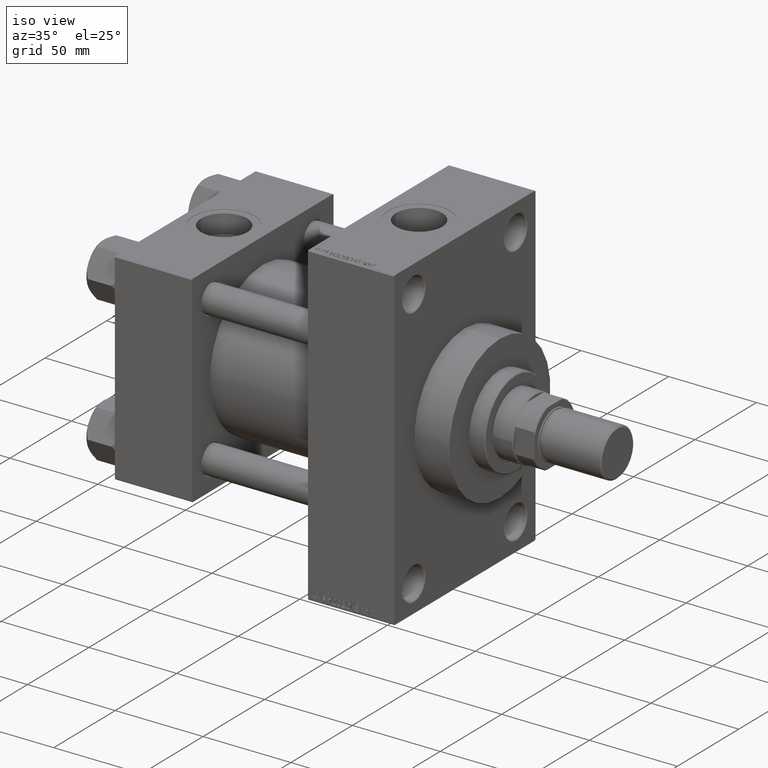
[diagram: clean part render]
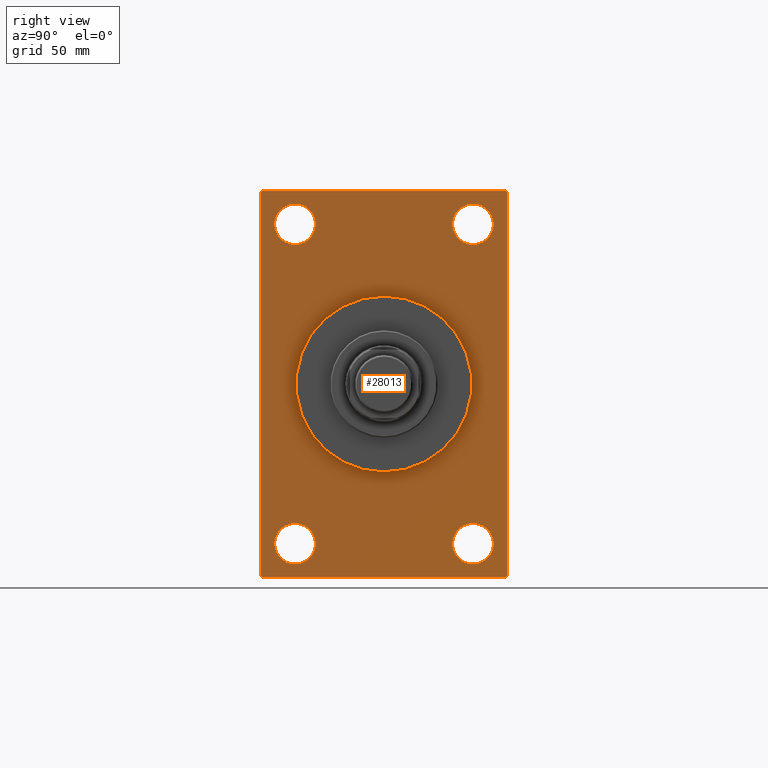
[diagram: tour spotlight — one face highlighted and labeled with its STEP entity id]
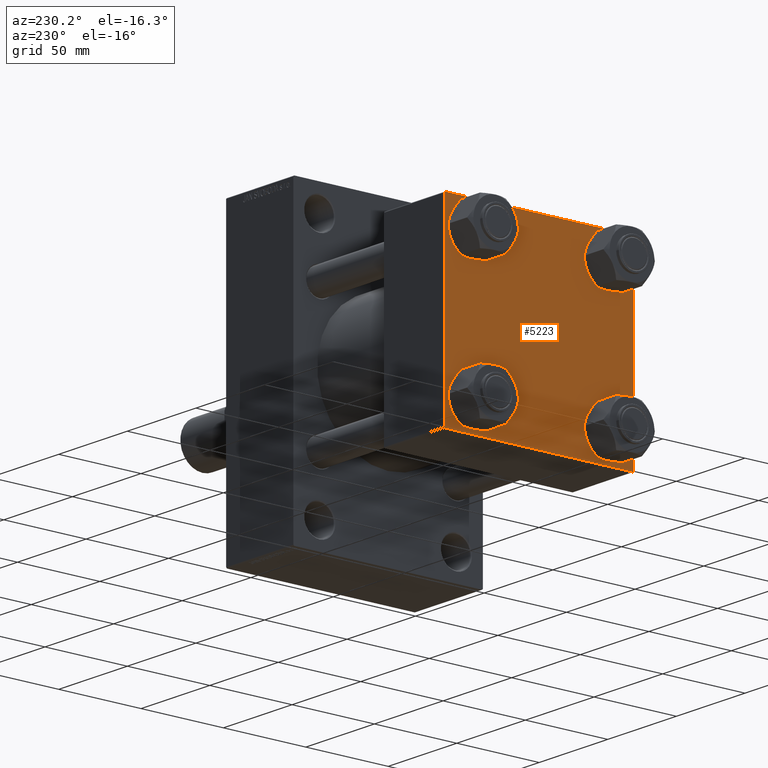
[diagram: tour spotlight — one face highlighted and labeled with its STEP entity id]
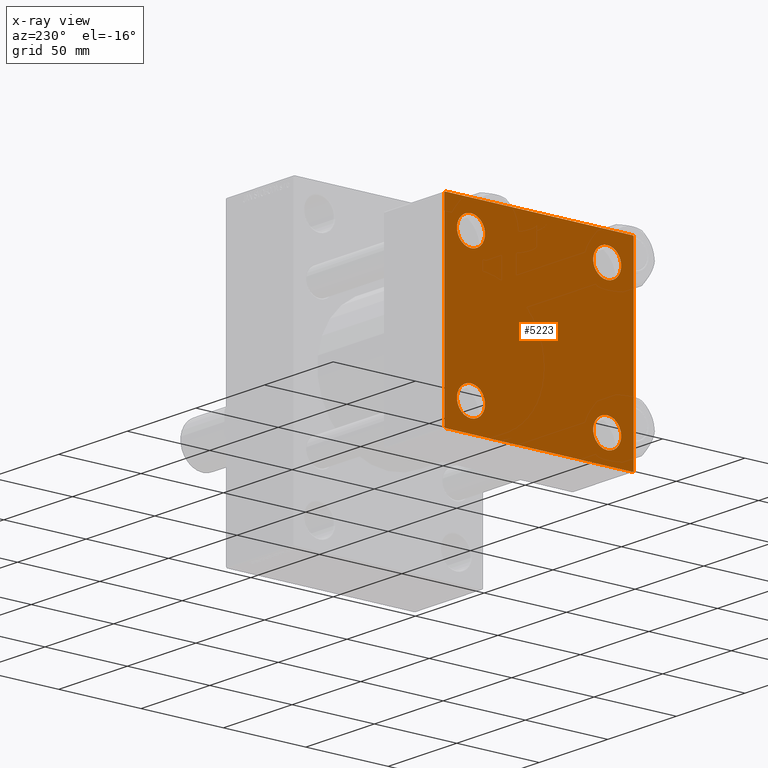
[diagram: x-ray of the same camera — body ghosted, this tour face saturated]
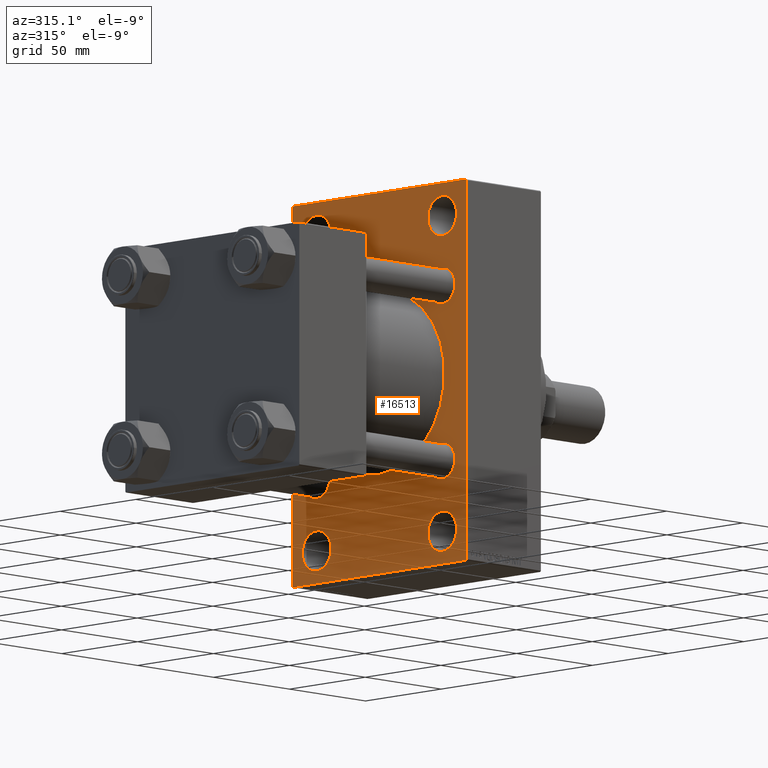
[diagram: tour spotlight — one face highlighted and labeled with its STEP entity id]
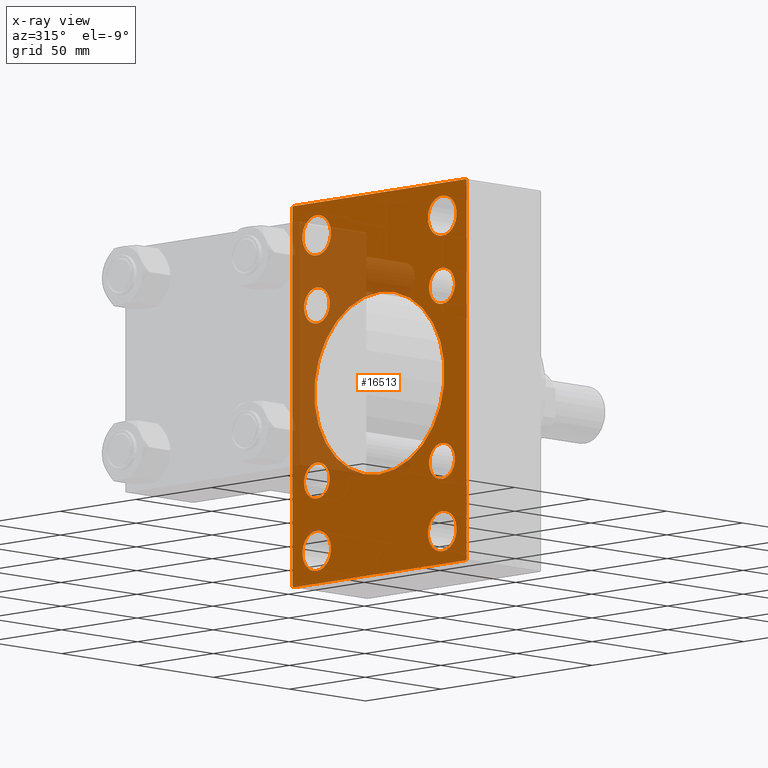
[diagram: x-ray of the same camera — body ghosted, this tour face saturated]
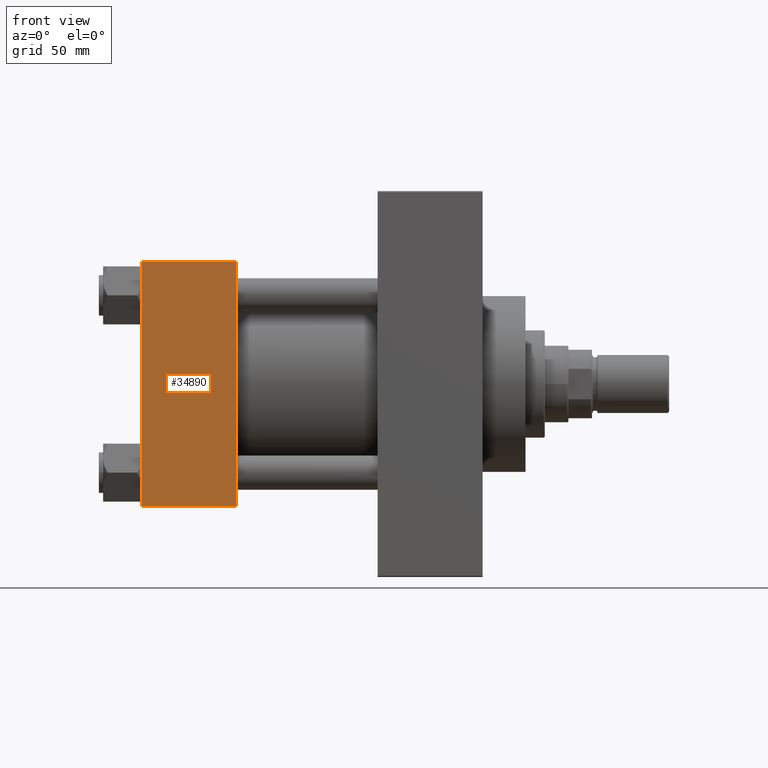
[diagram: tour spotlight — one face highlighted and labeled with its STEP entity id]
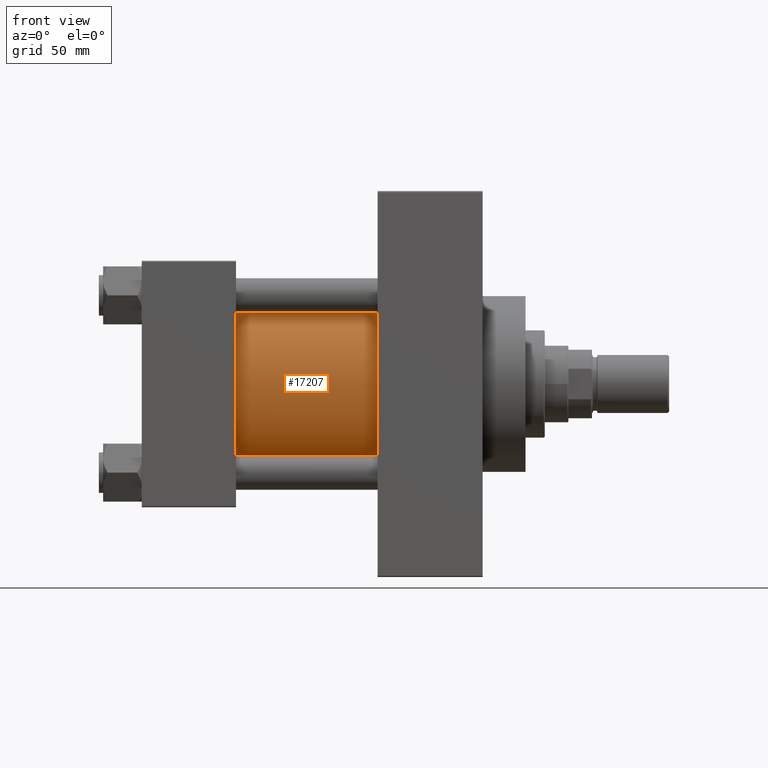
[diagram: tour spotlight — one face highlighted and labeled with its STEP entity id]
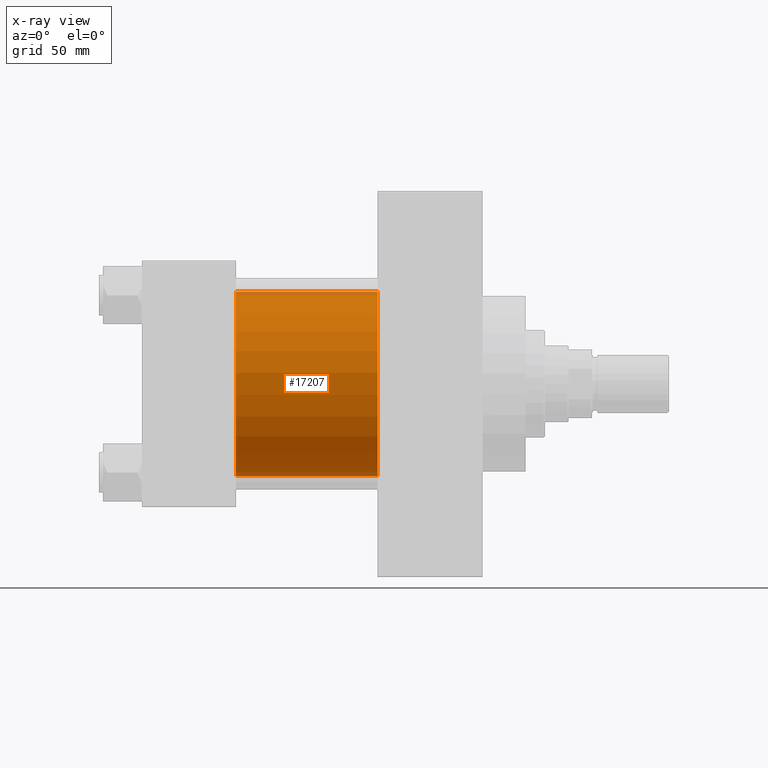
[diagram: x-ray of the same camera — body ghosted, this tour face saturated]
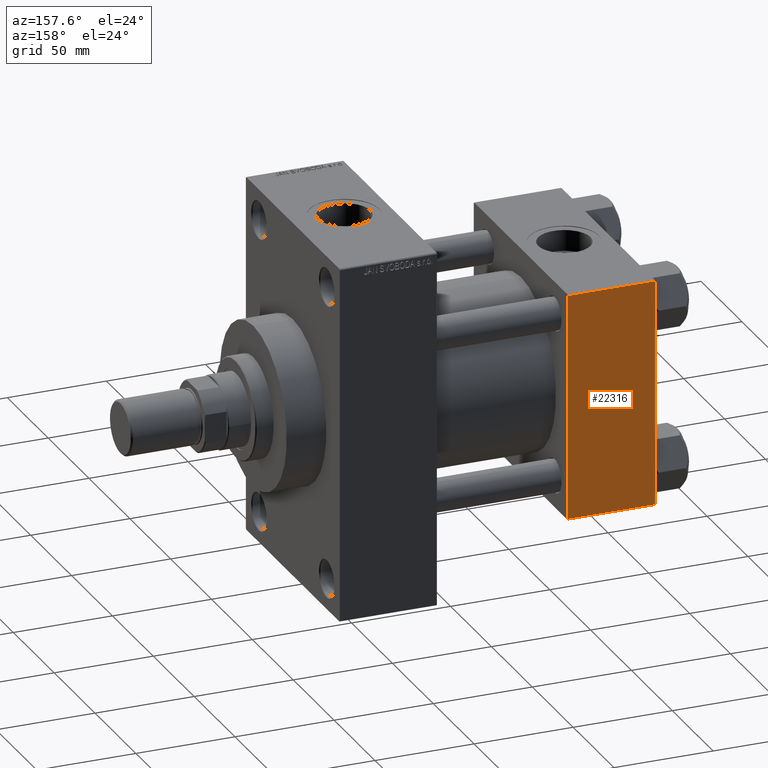
[diagram: tour spotlight — one face highlighted and labeled with its STEP entity id]
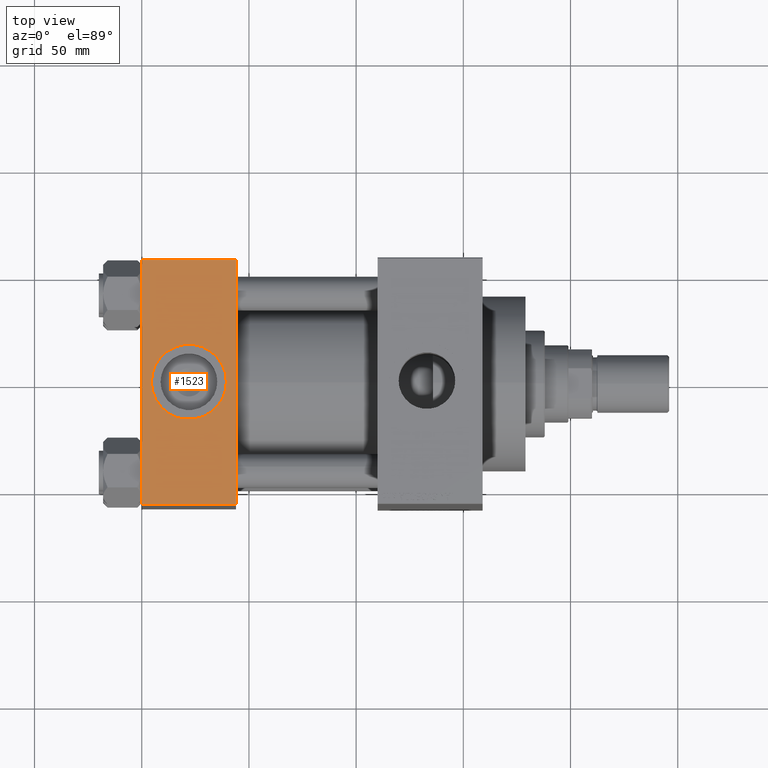
[diagram: tour spotlight — one face highlighted and labeled with its STEP entity id]
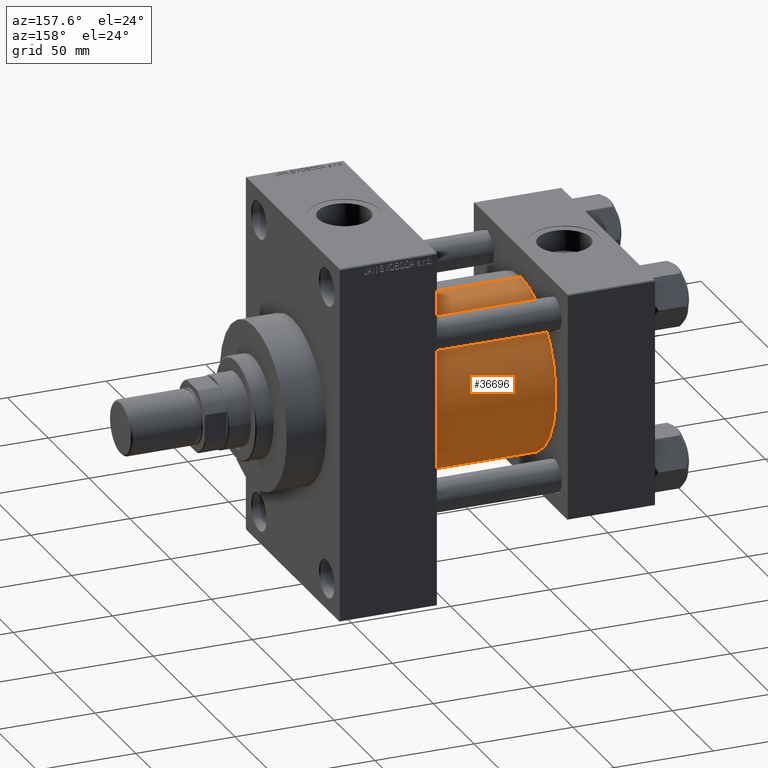
[diagram: tour spotlight — one face highlighted and labeled with its STEP entity id]
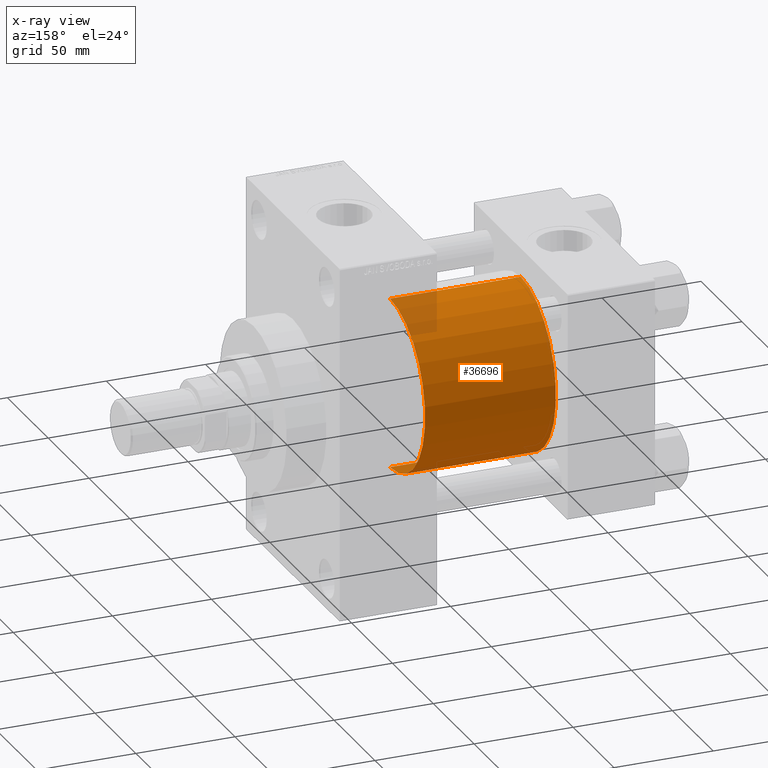
[diagram: x-ray of the same camera — body ghosted, this tour face saturated]
A machine part: a face-by-face anatomy tour. The part has 1165 B-rep faces; the first image is the clean iso view, then the 8 largest visible faces are spotlighted one at a time (largest first), each with its STEP entity span.

Face 1 — right view, entity #28013. In plain terms, the highlighted planar face has unit normal (-1, 0, 0).
Definition (entity closure, byte-faithful):
#379 = AXIS2_PLACEMENT_3D ( 'NONE', #40854, #11409, #15279 ) ;
#813 = AXIS2_PLACEMENT_3D ( 'NONE', #16960, #2599, #17439 ) ;
#1122 = DIRECTION ( 'NONE',  ( -0.000000000000000000, -0.7071067811865524577, -0.7071067811865426878 ) ) ;
#1768 = EDGE_LOOP ( 'NONE', ( #7471, #28248 ) ) ;
#2075 = CARTESIAN_POINT ( 'NONE',  ( 159.0000000000000000, 57.49999999999997868, -89.49999999999995737 ) ) ;
#2393 = DIRECTION ( 'NONE',  ( 1.000000000000000000, 0.000000000000000000, 0.000000000000000000 ) ) ;
#2548 = EDGE_CURVE ( 'NONE', #7657, #31135, #15567, .T. ) ;
#2599 = DIRECTION ( 'NONE',  ( -1.000000000000000000, 0.000000000000000000, -0.000000000000000000 ) ) ;
#2780 = EDGE_CURVE ( 'NONE', #24618, #26743, #31085, .T. ) ;
#2906 = DIRECTION ( 'NONE',  ( 0.000000000000000000, 0.000000000000000000, 1.000000000000000000 ) ) ;
#3275 = EDGE_CURVE ( 'NONE', #20632, #31902, #46760, .T. ) ;
#3478 = CIRCLE ( 'NONE', #8937, 9.500000000000008882 ) ;
#3681 = DIRECTION ( 'NONE',  ( 0.000000000000000000, 0.000000000000000000, -1.000000000000000000 ) ) ;
#3929 = DIRECTION ( 'NONE',  ( 0.000000000000000000, 0.000000000000000000, 1.000000000000000000 ) ) ;
#3970 = VECTOR ( 'NONE', #43344, 1000.000000000000000 ) ;
#4050 = CARTESIAN_POINT ( 'NONE',  ( 159.0000000000000000, 57.49999999999997158, 89.99999999999998579 ) ) ;
#4067 = LINE ( 'NONE', #8226, #40721 ) ;
#4106 = AXIS2_PLACEMENT_3D ( 'NONE', #38543, #12024, #4718 ) ;
#4718 = DIRECTION ( 'NONE',  ( 0.000000000000000000, 0.000000000000000000, 1.000000000000000000 ) ) ;
#4752 = VECTOR ( 'NONE', #42963, 999.9999999999998863 ) ;
#4793 = FACE_BOUND ( 'NONE', #37286, .T. ) ;
#4823 = CARTESIAN_POINT ( 'NONE',  ( 159.0000000000000000, 41.50000000000000711, -74.50000000000000000 ) ) ;
#4952 = CARTESIAN_POINT ( 'NONE',  ( 159.0000000000000000, 41.50000000000000711, 65.00000000000000000 ) ) ;
#5028 = AXIS2_PLACEMENT_3D ( 'NONE', #28411, #24736, #43231 ) ;
#6219 = CARTESIAN_POINT ( 'NONE',  ( 159.0000000000000000, 5.021051876504148963E-15, -41.00000000000000000 ) ) ;
#6324 = ORIENTED_EDGE ( 'NONE', *, *, #11238, .T. ) ;
#6799 = ORIENTED_EDGE ( 'NONE', *, *, #43614, .T. ) ;
#6993 = CARTESIAN_POINT ( 'NONE',  ( 159.0000000000000000, 56.99999999999994316, 89.99999999999998579 ) ) ;
#7272 = CIRCLE ( 'NONE', #43022, 9.500000000000008882 ) ;
#7453 = EDGE_LOOP ( 'NONE', ( #15888, #6799 ) ) ;
#7471 = ORIENTED_EDGE ( 'NONE', *, *, #2548, .T. ) ;
#7657 = VERTEX_POINT ( 'NONE', #23206 ) ;
#7666 = EDGE_CURVE ( 'NONE', #27638, #13959, #44507, .T. ) ;
#7731 = DIRECTION ( 'NONE',  ( 0.000000000000000000, -1.000000000000000000, -1.206764157201257291E-16 ) ) ;
#8226 = CARTESIAN_POINT ( 'NONE',  ( 159.0000000000000000, 57.49999999999997158, 89.99999999999998579 ) ) ;
#8396 = CARTESIAN_POINT ( 'NONE',  ( 159.0000000000000000, 56.99999999999994316, 89.99999999999998579 ) ) ;
#8450 = CARTESIAN_POINT ( 'NONE',  ( 159.0000000000000000, 41.50000000000000711, 84.00000000000001421 ) ) ;
#8523 = CARTESIAN_POINT ( 'NONE',  ( 159.0000000000000000, 57.49999999999997868, -90.00000000000000000 ) ) ;
#8709 = EDGE_CURVE ( 'NONE', #31135, #7657, #7272, .T. ) ;
#8937 = AXIS2_PLACEMENT_3D ( 'NONE', #4823, #38403, #42292 ) ;
#8940 = PLANE ( 'NONE',  #47094 ) ;
#9146 = VERTEX_POINT ( 'NONE', #33853 ) ;
#9169 = CARTESIAN_POINT ( 'NONE',  ( 159.0000000000000000, -41.49999999999999289, -74.49999999999998579 ) ) ;
#9190 = CIRCLE ( 'NONE', #31742, 9.500000000000008882 ) ;
#9560 = EDGE_CURVE ( 'NONE', #44722, #33675, #4067, .T. ) ;
#9883 = ORIENTED_EDGE ( 'NONE', *, *, #48086, .T. ) ;
#10323 = CARTESIAN_POINT ( 'NONE',  ( 159.0000000000000000, -41.49999999999999289, -64.99999999999997158 ) ) ;
#10487 = EDGE_CURVE ( 'NONE', #22861, #19598, #15889, .T. ) ;
#11238 = EDGE_CURVE ( 'NONE', #48004, #13299, #3478, .T. ) ;
#11409 = DIRECTION ( 'NONE',  ( -1.000000000000000000, 0.000000000000000000, -0.000000000000000000 ) ) ;
#11425 = LINE ( 'NONE', #8523, #27323 ) ;
#11433 = CARTESIAN_POINT ( 'NONE',  ( 159.0000000000000000, 41.50000000000000711, -84.00000000000000000 ) ) ;
#11493 = CIRCLE ( 'NONE', #38716, 41.00000000000000000 ) ;
#11846 = CARTESIAN_POINT ( 'NONE',  ( 159.0000000000000000, 0.000000000000000000, 0.000000000000000000 ) ) ;
#12024 = DIRECTION ( 'NONE',  ( -1.000000000000000000, 0.000000000000000000, -0.000000000000000000 ) ) ;
#12341 = DIRECTION ( 'NONE',  ( -0.000000000000000000, 0.000000000000000000, 1.000000000000000000 ) ) ;
#12583 = EDGE_CURVE ( 'NONE', #24618, #39893, #11425, .T. ) ;
#13299 = VERTEX_POINT ( 'NONE', #11433 ) ;
#13420 = CARTESIAN_POINT ( 'NONE',  ( 159.0000000000000000, -57.50000000000002132, 89.99999999999997158 ) ) ;
#13620 = CARTESIAN_POINT ( 'NONE',  ( 159.0000000000000000, -56.99999999999998579, 89.99999999999997158 ) ) ;
#13959 = VERTEX_POINT ( 'NONE', #38095 ) ;
#14131 = CARTESIAN_POINT ( 'NONE',  ( 159.0000000000000000, 0.000000000000000000, 41.00000000000000000 ) ) ;
#14329 = DIRECTION ( 'NONE',  ( -1.000000000000000000, 0.000000000000000000, -0.000000000000000000 ) ) ;
#15279 = DIRECTION ( 'NONE',  ( 0.000000000000000000, 0.000000000000000000, 1.000000000000000000 ) ) ;
#15478 = FACE_BOUND ( 'NONE', #7453, .T. ) ;
#15567 = CIRCLE ( 'NONE', #813, 9.500000000000008882 ) ;
#15888 = ORIENTED_EDGE ( 'NONE', *, *, #7666, .T. ) ;
#15889 = CIRCLE ( 'NONE', #5028, 9.500000000000008882 ) ;
#16211 = ORIENTED_EDGE ( 'NONE', *, *, #30224, .F. ) ;
#16960 = CARTESIAN_POINT ( 'NONE',  ( 159.0000000000000000, -41.49999999999999289, -74.49999999999998579 ) ) ;
#17220 = ORIENTED_EDGE ( 'NONE', *, *, #3275, .T. ) ;
#17439 = DIRECTION ( 'NONE',  ( 0.000000000000000000, 0.000000000000000000, 1.000000000000000000 ) ) ;
#17554 = EDGE_LOOP ( 'NONE', ( #17220, #18300, #45032, #24182, #27042, #9883, #30072, #19367 ) ) ;
#18300 = ORIENTED_EDGE ( 'NONE', *, *, #29436, .T. ) ;
#18877 = DIRECTION ( 'NONE',  ( 0.000000000000000000, 3.854941057726238467E-17, -1.000000000000000000 ) ) ;
#19367 = ORIENTED_EDGE ( 'NONE', *, *, #43715, .T. ) ;
#19443 = DIRECTION ( 'NONE',  ( 0.000000000000000000, -1.000000000000000000, -1.206764157201257045E-16 ) ) ;
#19588 = EDGE_CURVE ( 'NONE', #9146, #26743, #22535, .T. ) ;
#19598 = VERTEX_POINT ( 'NONE', #8450 ) ;
#19653 = VERTEX_POINT ( 'NONE', #6219 ) ;
#19686 = ORIENTED_EDGE ( 'NONE', *, *, #10487, .T. ) ;
#20632 = VERTEX_POINT ( 'NONE', #21901 ) ;
#21901 = CARTESIAN_POINT ( 'NONE',  ( 159.0000000000000000, -57.50000000000002132, 89.49999999999994316 ) ) ;
#22493 = VECTOR ( 'NONE', #29570, 1000.000000000000114 ) ;
#22535 = LINE ( 'NONE', #4050, #42273 ) ;
#22861 = VERTEX_POINT ( 'NONE', #4952 ) ;
#23206 = CARTESIAN_POINT ( 'NONE',  ( 159.0000000000000000, -41.49999999999999289, -83.99999999999998579 ) ) ;
#23276 = CARTESIAN_POINT ( 'NONE',  ( 159.0000000000000000, -57.50000000000002132, 89.49999999999994316 ) ) ;
#23294 = AXIS2_PLACEMENT_3D ( 'NONE', #44103, #37281, #3929 ) ;
#23766 = FACE_BOUND ( 'NONE', #1768, .T. ) ;
#24182 = ORIENTED_EDGE ( 'NONE', *, *, #2780, .T. ) ;
#24618 = VERTEX_POINT ( 'NONE', #41224 ) ;
#24736 = DIRECTION ( 'NONE',  ( -1.000000000000000000, 0.000000000000000000, -0.000000000000000000 ) ) ;
#24848 = CIRCLE ( 'NONE', #23294, 9.500000000000008882 ) ;
#25861 = CARTESIAN_POINT ( 'NONE',  ( 159.0000000000000000, -56.99999999999996447, -90.00000000000001421 ) ) ;
#26685 = EDGE_CURVE ( 'NONE', #19598, #22861, #32274, .T. ) ;
#26697 = DIRECTION ( 'NONE',  ( -1.000000000000000000, 0.000000000000000000, -0.000000000000000000 ) ) ;
#26743 = VERTEX_POINT ( 'NONE', #36978 ) ;
#27042 = ORIENTED_EDGE ( 'NONE', *, *, #19588, .F. ) ;
#27323 = VECTOR ( 'NONE', #19443, 1000.000000000000000 ) ;
#27434 = FACE_BOUND ( 'NONE', #36564, .T. ) ;
#27638 = VERTEX_POINT ( 'NONE', #41098 ) ;
#28013 = ADVANCED_FACE ( 'NONE', ( #15478, #23766, #4793, #27434, #42265, #33998 ), #8940, .F. ) ;
#28144 = DIRECTION ( 'NONE',  ( 0.000000000000000000, 0.000000000000000000, 1.000000000000000000 ) ) ;
#28217 = DIRECTION ( 'NONE',  ( 0.000000000000000000, 0.000000000000000000, -1.000000000000000000 ) ) ;
#28248 = ORIENTED_EDGE ( 'NONE', *, *, #8709, .T. ) ;
#28411 = CARTESIAN_POINT ( 'NONE',  ( 159.0000000000000000, 41.50000000000000711, 74.50000000000001421 ) ) ;
#28617 = VECTOR ( 'NONE', #1122, 1000.000000000000000 ) ;
#29436 = EDGE_CURVE ( 'NONE', #31902, #39893, #38619, .T. ) ;
#29570 = DIRECTION ( 'NONE',  ( 0.000000000000000000, -0.7071067811865474617, 0.7071067811865474617 ) ) ;
#30072 = ORIENTED_EDGE ( 'NONE', *, *, #9560, .T. ) ;
#30224 = EDGE_CURVE ( 'NONE', #19653, #40875, #39408, .T. ) ;
#31085 = LINE ( 'NONE', #2075, #4752 ) ;
#31135 = VERTEX_POINT ( 'NONE', #10323 ) ;
#31319 = LINE ( 'NONE', #23276, #28617 ) ;
#31742 = AXIS2_PLACEMENT_3D ( 'NONE', #40142, #14329, #2906 ) ;
#31902 = VERTEX_POINT ( 'NONE', #36664 ) ;
#32274 = CIRCLE ( 'NONE', #379, 9.500000000000008882 ) ;
#32687 = CARTESIAN_POINT ( 'NONE',  ( 159.0000000000000000, 0.000000000000000000, 0.000000000000000000 ) ) ;
#33134 = ORIENTED_EDGE ( 'NONE', *, *, #26685, .T. ) ;
#33453 = LINE ( 'NONE', #8396, #22493 ) ;
#33675 = VERTEX_POINT ( 'NONE', #13620 ) ;
#33853 = CARTESIAN_POINT ( 'NONE',  ( 159.0000000000000000, 57.49999999999997158, 89.49999999999995737 ) ) ;
#33998 = FACE_OUTER_BOUND ( 'NONE', #17554, .T. ) ;
#34288 = ORIENTED_EDGE ( 'NONE', *, *, #44162, .F. ) ;
#35968 = EDGE_LOOP ( 'NONE', ( #34288, #16211 ) ) ;
#36564 = EDGE_LOOP ( 'NONE', ( #19686, #33134 ) ) ;
#36664 = CARTESIAN_POINT ( 'NONE',  ( 159.0000000000000000, -57.50000000000002132, -89.49999999999991473 ) ) ;
#36915 = EDGE_CURVE ( 'NONE', #13299, #48004, #24848, .T. ) ;
#36978 = CARTESIAN_POINT ( 'NONE',  ( 159.0000000000000000, 57.49999999999997868, -89.49999999999990052 ) ) ;
#37281 = DIRECTION ( 'NONE',  ( -1.000000000000000000, 0.000000000000000000, -0.000000000000000000 ) ) ;
#37286 = EDGE_LOOP ( 'NONE', ( #46015, #6324 ) ) ;
#38095 = CARTESIAN_POINT ( 'NONE',  ( 159.0000000000000000, -41.49999999999999289, 84.00000000000001421 ) ) ;
#38403 = DIRECTION ( 'NONE',  ( -1.000000000000000000, 0.000000000000000000, -0.000000000000000000 ) ) ;
#38543 = CARTESIAN_POINT ( 'NONE',  ( 159.0000000000000000, -41.49999999999999289, 74.50000000000001421 ) ) ;
#38608 = DIRECTION ( 'NONE',  ( -1.000000000000000000, 0.000000000000000000, -0.000000000000000000 ) ) ;
#38619 = LINE ( 'NONE', #39567, #44028 ) ;
#38716 = AXIS2_PLACEMENT_3D ( 'NONE', #32687, #44568, #3681 ) ;
#39408 = CIRCLE ( 'NONE', #40931, 41.00000000000000000 ) ;
#39567 = CARTESIAN_POINT ( 'NONE',  ( 159.0000000000000000, -56.99999999999996447, -90.00000000000001421 ) ) ;
#39875 = CARTESIAN_POINT ( 'NONE',  ( 159.0000000000000000, 0.000000000000000000, 0.000000000000000000 ) ) ;
#39893 = VERTEX_POINT ( 'NONE', #25861 ) ;
#40142 = CARTESIAN_POINT ( 'NONE',  ( 159.0000000000000000, -41.49999999999999289, 74.50000000000001421 ) ) ;
#40721 = VECTOR ( 'NONE', #7731, 1000.000000000000000 ) ;
#40854 = CARTESIAN_POINT ( 'NONE',  ( 159.0000000000000000, 41.50000000000000711, 74.50000000000001421 ) ) ;
#40875 = VERTEX_POINT ( 'NONE', #14131 ) ;
#40931 = AXIS2_PLACEMENT_3D ( 'NONE', #39875, #2393, #28217 ) ;
#41098 = CARTESIAN_POINT ( 'NONE',  ( 159.0000000000000000, -41.49999999999999289, 65.00000000000000000 ) ) ;
#41224 = CARTESIAN_POINT ( 'NONE',  ( 159.0000000000000000, 56.99999999999992895, -90.00000000000000000 ) ) ;
#42265 = FACE_BOUND ( 'NONE', #35968, .T. ) ;
#42273 = VECTOR ( 'NONE', #18877, 1000.000000000000000 ) ;
#42292 = DIRECTION ( 'NONE',  ( 0.000000000000000000, 0.000000000000000000, 1.000000000000000000 ) ) ;
#42963 = DIRECTION ( 'NONE',  ( -0.000000000000000000, 0.7071067811865574537, 0.7071067811865376918 ) ) ;
#43022 = AXIS2_PLACEMENT_3D ( 'NONE', #9169, #38608, #28144 ) ;
#43231 = DIRECTION ( 'NONE',  ( 0.000000000000000000, 0.000000000000000000, 1.000000000000000000 ) ) ;
#43344 = DIRECTION ( 'NONE',  ( 0.000000000000000000, 0.000000000000000000, -1.000000000000000000 ) ) ;
#43614 = EDGE_CURVE ( 'NONE', #13959, #27638, #9190, .T. ) ;
#43715 = EDGE_CURVE ( 'NONE', #33675, #20632, #31319, .T. ) ;
#44028 = VECTOR ( 'NONE', #46388, 999.9999999999998863 ) ;
#44103 = CARTESIAN_POINT ( 'NONE',  ( 159.0000000000000000, 41.50000000000000711, -74.50000000000000000 ) ) ;
#44162 = EDGE_CURVE ( 'NONE', #40875, #19653, #11493, .T. ) ;
#44507 = CIRCLE ( 'NONE', #4106, 9.500000000000008882 ) ;
#44568 = DIRECTION ( 'NONE',  ( 1.000000000000000000, 0.000000000000000000, 0.000000000000000000 ) ) ;
#44722 = VERTEX_POINT ( 'NONE', #6993 ) ;
#45032 = ORIENTED_EDGE ( 'NONE', *, *, #12583, .F. ) ;
#46015 = ORIENTED_EDGE ( 'NONE', *, *, #36915, .T. ) ;
#46388 = DIRECTION ( 'NONE',  ( 0.000000000000000000, 0.7071067811865574537, -0.7071067811865376918 ) ) ;
#46760 = LINE ( 'NONE', #13420, #3970 ) ;
#47094 = AXIS2_PLACEMENT_3D ( 'NONE', #11846, #26697, #12341 ) ;
#47573 = CARTESIAN_POINT ( 'NONE',  ( 159.0000000000000000, 41.50000000000000711, -64.99999999999998579 ) ) ;
#48004 = VERTEX_POINT ( 'NONE', #47573 ) ;
#48086 = EDGE_CURVE ( 'NONE', #9146, #44722, #33453, .T. ) ;

Face 2 — auxiliary view, entity #5223. An x-ray twin of the same camera follows (body ghosted, this face saturated) — the face is partly hidden behind the body. In plain terms, the highlighted planar face has unit normal (-1, 0, 0).
Definition (entity closure, byte-faithful):
#298 = ORIENTED_EDGE ( 'NONE', *, *, #43400, .T. ) ;
#350 = VECTOR ( 'NONE', #12558, 1000.000000000000000 ) ;
#889 = CARTESIAN_POINT ( 'NONE',  ( 0.000000000000000000, -41.34999999999998721, -32.85000000000001563 ) ) ;
#953 = VERTEX_POINT ( 'NONE', #39413 ) ;
#1126 = CARTESIAN_POINT ( 'NONE',  ( 0.000000000000000000, 57.25000000000081712, -57.24999999999922551 ) ) ;
#1713 = VERTEX_POINT ( 'NONE', #18028 ) ;
#1722 = AXIS2_PLACEMENT_3D ( 'NONE', #32726, #29080, #40011 ) ;
#2346 = DIRECTION ( 'NONE',  ( 0.000000000000000000, 0.000000000000000000, 1.000000000000000000 ) ) ;
#2364 = DIRECTION ( 'NONE',  ( 0.000000000000000000, 0.000000000000000000, 1.000000000000000000 ) ) ;
#2648 = ORIENTED_EDGE ( 'NONE', *, *, #11505, .T. ) ;
#2847 = CARTESIAN_POINT ( 'NONE',  ( 0.000000000000000000, 57.00000000000002132, -57.49999999999999289 ) ) ;
#3066 = ORIENTED_EDGE ( 'NONE', *, *, #34452, .T. ) ;
#3199 = CARTESIAN_POINT ( 'NONE',  ( 0.000000000000000000, -41.34999999999998721, -41.35000000000000853 ) ) ;
#3553 = CARTESIAN_POINT ( 'NONE',  ( 0.000000000000000000, 57.24999999999922551, 57.25000000000081712 ) ) ;
#3696 = CARTESIAN_POINT ( 'NONE',  ( 0.000000000000000000, -41.34999999999998721, -41.35000000000000853 ) ) ;
#4340 = CARTESIAN_POINT ( 'NONE',  ( 0.000000000000000000, 57.49999999999999289, -57.00000000000000711 ) ) ;
#4827 = EDGE_CURVE ( 'NONE', #11270, #953, #6387, .T. ) ;
#5223 = ADVANCED_FACE ( 'NONE', ( #5952, #12790, #28600, #35179, #8914 ), #23741, .T. ) ;
#5330 = VERTEX_POINT ( 'NONE', #7384 ) ;
#5731 = CARTESIAN_POINT ( 'NONE',  ( 0.000000000000000000, -57.00000000000003553, 57.49999999999999289 ) ) ;
#5952 = FACE_BOUND ( 'NONE', #12505, .T. ) ;
#5985 = ORIENTED_EDGE ( 'NONE', *, *, #12138, .T. ) ;
#6004 = VERTEX_POINT ( 'NONE', #4340 ) ;
#6089 = EDGE_CURVE ( 'NONE', #33172, #42941, #47113, .T. ) ;
#6387 = CIRCLE ( 'NONE', #33576, 8.499999999999992895 ) ;
#6930 = LINE ( 'NONE', #14918, #40374 ) ;
#7082 = CARTESIAN_POINT ( 'NONE',  ( 0.000000000000000000, 41.34999999999999432, 41.35000000000000142 ) ) ;
#7180 = EDGE_CURVE ( 'NONE', #28143, #5330, #36024, .T. ) ;
#7384 = CARTESIAN_POINT ( 'NONE',  ( 0.000000000000000000, -57.50000000000000711, -57.00000000000000711 ) ) ;
#8480 = VECTOR ( 'NONE', #12576, 1000.000000000000114 ) ;
#8914 = FACE_OUTER_BOUND ( 'NONE', #37550, .T. ) ;
#9142 = VERTEX_POINT ( 'NONE', #29966 ) ;
#10053 = DIRECTION ( 'NONE',  ( 1.000000000000000000, -0.000000000000000000, 0.000000000000000000 ) ) ;
#10317 = VECTOR ( 'NONE', #36410, 1000.000000000000000 ) ;
#10507 = DIRECTION ( 'NONE',  ( 1.000000000000000000, -0.000000000000000000, 0.000000000000000000 ) ) ;
#10619 = CARTESIAN_POINT ( 'NONE',  ( 0.000000000000000000, 41.34999999999999432, 41.35000000000000142 ) ) ;
#10653 = EDGE_CURVE ( 'NONE', #1713, #9142, #35326, .T. ) ;
#10694 = CARTESIAN_POINT ( 'NONE',  ( 0.000000000000000000, -57.25000000000000711, -57.25000000000000711 ) ) ;
#10727 = DIRECTION ( 'NONE',  ( 0.000000000000000000, -1.000000000000000000, -1.206764157201257045E-16 ) ) ;
#11270 = VERTEX_POINT ( 'NONE', #22816 ) ;
#11505 = EDGE_CURVE ( 'NONE', #33172, #44874, #18619, .T. ) ;
#12047 = VECTOR ( 'NONE', #33733, 1000.000000000000114 ) ;
#12091 = EDGE_CURVE ( 'NONE', #953, #11270, #21709, .T. ) ;
#12138 = EDGE_CURVE ( 'NONE', #27997, #34382, #19380, .T. ) ;
#12177 = VECTOR ( 'NONE', #10727, 1000.000000000000000 ) ;
#12505 = EDGE_LOOP ( 'NONE', ( #26339, #25916 ) ) ;
#12558 = DIRECTION ( 'NONE',  ( 0.000000000000000000, 0.000000000000000000, -1.000000000000000000 ) ) ;
#12576 = DIRECTION ( 'NONE',  ( -0.000000000000000000, -0.7071067811865376918, -0.7071067811865573427 ) ) ;
#12790 = FACE_BOUND ( 'NONE', #41661, .T. ) ;
#13284 = ORIENTED_EDGE ( 'NONE', *, *, #10653, .T. ) ;
#13903 = ORIENTED_EDGE ( 'NONE', *, *, #28574, .T. ) ;
#14633 = DIRECTION ( 'NONE',  ( 1.000000000000000000, -0.000000000000000000, 0.000000000000000000 ) ) ;
#14918 = CARTESIAN_POINT ( 'NONE',  ( 0.000000000000000000, 57.49999999999999289, 57.50000000000000711 ) ) ;
#15119 = DIRECTION ( 'NONE',  ( 0.000000000000000000, 0.000000000000000000, 1.000000000000000000 ) ) ;
#15364 = CIRCLE ( 'NONE', #27849, 8.499999999999992895 ) ;
#15438 = AXIS2_PLACEMENT_3D ( 'NONE', #7082, #10507, #21909 ) ;
#15442 = DIRECTION ( 'NONE',  ( 1.000000000000000000, -0.000000000000000000, 0.000000000000000000 ) ) ;
#15755 = ORIENTED_EDGE ( 'NONE', *, *, #36847, .T. ) ;
#17042 = AXIS2_PLACEMENT_3D ( 'NONE', #25147, #39985, #35152 ) ;
#18028 = CARTESIAN_POINT ( 'NONE',  ( 0.000000000000000000, 41.34999999999999432, 32.85000000000000853 ) ) ;
#18234 = CARTESIAN_POINT ( 'NONE',  ( 0.000000000000000000, 41.34999999999999432, -32.85000000000000853 ) ) ;
#18619 = LINE ( 'NONE', #3553, #12047 ) ;
#19380 = CIRCLE ( 'NONE', #25608, 8.499999999999992895 ) ;
#20756 = DIRECTION ( 'NONE',  ( 0.000000000000000000, 0.000000000000000000, 1.000000000000000000 ) ) ;
#20833 = CARTESIAN_POINT ( 'NONE',  ( 0.000000000000000000, -41.34999999999998721, 41.35000000000000853 ) ) ;
#21189 = LINE ( 'NONE', #44065, #12177 ) ;
#21315 = LINE ( 'NONE', #24024, #34615 ) ;
#21709 = CIRCLE ( 'NONE', #17042, 8.499999999999992895 ) ;
#21909 = DIRECTION ( 'NONE',  ( 0.000000000000000000, 0.000000000000000000, 1.000000000000000000 ) ) ;
#21940 = EDGE_CURVE ( 'NONE', #35744, #42941, #21315, .T. ) ;
#22163 = EDGE_CURVE ( 'NONE', #35744, #5330, #30336, .T. ) ;
#22424 = CIRCLE ( 'NONE', #15438, 8.499999999999992895 ) ;
#22816 = CARTESIAN_POINT ( 'NONE',  ( 0.000000000000000000, -41.34999999999998721, 32.85000000000001563 ) ) ;
#23006 = DIRECTION ( 'NONE',  ( 0.000000000000000000, 0.000000000000000000, 1.000000000000000000 ) ) ;
#23741 = PLANE ( 'NONE',  #1722 ) ;
#24024 = CARTESIAN_POINT ( 'NONE',  ( -0.000000000000000000, -57.25000000000081712, 57.24999999999922551 ) ) ;
#24418 = DIRECTION ( 'NONE',  ( 1.000000000000000000, -0.000000000000000000, 0.000000000000000000 ) ) ;
#24745 = CIRCLE ( 'NONE', #45737, 8.499999999999992895 ) ;
#25147 = CARTESIAN_POINT ( 'NONE',  ( 0.000000000000000000, -41.34999999999998721, 41.35000000000000853 ) ) ;
#25595 = DIRECTION ( 'NONE',  ( 0.000000000000000000, 0.000000000000000000, 1.000000000000000000 ) ) ;
#25608 = AXIS2_PLACEMENT_3D ( 'NONE', #3696, #14633, #15119 ) ;
#25916 = ORIENTED_EDGE ( 'NONE', *, *, #4827, .T. ) ;
#26107 = AXIS2_PLACEMENT_3D ( 'NONE', #35621, #24418, #20756 ) ;
#26339 = ORIENTED_EDGE ( 'NONE', *, *, #12091, .T. ) ;
#26907 = VERTEX_POINT ( 'NONE', #38181 ) ;
#26979 = VERTEX_POINT ( 'NONE', #2847 ) ;
#27696 = DIRECTION ( 'NONE',  ( 1.000000000000000000, -0.000000000000000000, 0.000000000000000000 ) ) ;
#27849 = AXIS2_PLACEMENT_3D ( 'NONE', #3199, #10053, #25595 ) ;
#27997 = VERTEX_POINT ( 'NONE', #889 ) ;
#28143 = VERTEX_POINT ( 'NONE', #37461 ) ;
#28245 = VECTOR ( 'NONE', #32375, 1000.000000000000114 ) ;
#28574 = EDGE_CURVE ( 'NONE', #26907, #36210, #34679, .T. ) ;
#28600 = FACE_BOUND ( 'NONE', #46508, .T. ) ;
#28877 = CARTESIAN_POINT ( 'NONE',  ( 0.000000000000000000, 57.49999999999999289, 57.50000000000000711 ) ) ;
#29080 = DIRECTION ( 'NONE',  ( -1.000000000000000000, 0.000000000000000000, -0.000000000000000000 ) ) ;
#29332 = DIRECTION ( 'NONE',  ( 0.000000000000000000, 0.000000000000000000, -1.000000000000000000 ) ) ;
#29966 = CARTESIAN_POINT ( 'NONE',  ( 0.000000000000000000, 41.34999999999999432, 49.85000000000000142 ) ) ;
#30336 = LINE ( 'NONE', #45888, #350 ) ;
#31447 = AXIS2_PLACEMENT_3D ( 'NONE', #10619, #15442, #23006 ) ;
#31585 = DIRECTION ( 'NONE',  ( -0.000000000000000000, 0.7071067811865376918, 0.7071067811865573427 ) ) ;
#32375 = DIRECTION ( 'NONE',  ( 0.000000000000000000, -0.7071067811865474617, 0.7071067811865474617 ) ) ;
#32726 = CARTESIAN_POINT ( 'NONE',  ( 0.000000000000000000, 0.000000000000000000, 0.000000000000000000 ) ) ;
#33172 = VERTEX_POINT ( 'NONE', #47953 ) ;
#33228 = ORIENTED_EDGE ( 'NONE', *, *, #22163, .F. ) ;
#33576 = AXIS2_PLACEMENT_3D ( 'NONE', #20833, #27696, #2346 ) ;
#33733 = DIRECTION ( 'NONE',  ( 0.000000000000000000, 0.7071067811865573427, -0.7071067811865376918 ) ) ;
#34234 = EDGE_CURVE ( 'NONE', #36210, #26907, #24745, .T. ) ;
#34382 = VERTEX_POINT ( 'NONE', #44454 ) ;
#34452 = EDGE_CURVE ( 'NONE', #6004, #26979, #39086, .T. ) ;
#34615 = VECTOR ( 'NONE', #31585, 1000.000000000000114 ) ;
#34679 = CIRCLE ( 'NONE', #26107, 8.499999999999992895 ) ;
#35152 = DIRECTION ( 'NONE',  ( 0.000000000000000000, 0.000000000000000000, 1.000000000000000000 ) ) ;
#35179 = FACE_BOUND ( 'NONE', #39215, .T. ) ;
#35326 = CIRCLE ( 'NONE', #31447, 8.499999999999992895 ) ;
#35621 = CARTESIAN_POINT ( 'NONE',  ( 0.000000000000000000, 41.34999999999999432, -41.35000000000000142 ) ) ;
#35744 = VERTEX_POINT ( 'NONE', #46102 ) ;
#36024 = LINE ( 'NONE', #10694, #28245 ) ;
#36210 = VERTEX_POINT ( 'NONE', #18234 ) ;
#36410 = DIRECTION ( 'NONE',  ( 0.000000000000000000, -1.000000000000000000, -1.206764157201257045E-16 ) ) ;
#36847 = EDGE_CURVE ( 'NONE', #44874, #6004, #6930, .T. ) ;
#37366 = ORIENTED_EDGE ( 'NONE', *, *, #21940, .T. ) ;
#37461 = CARTESIAN_POINT ( 'NONE',  ( 0.000000000000000000, -57.00000000000000711, -57.50000000000000711 ) ) ;
#37550 = EDGE_LOOP ( 'NONE', ( #15755, #3066, #46776, #46174, #33228, #37366, #46911, #2648 ) ) ;
#38181 = CARTESIAN_POINT ( 'NONE',  ( 0.000000000000000000, 41.34999999999999432, -49.85000000000000142 ) ) ;
#39086 = LINE ( 'NONE', #1126, #8480 ) ;
#39215 = EDGE_LOOP ( 'NONE', ( #40042, #13284 ) ) ;
#39226 = ORIENTED_EDGE ( 'NONE', *, *, #34234, .T. ) ;
#39413 = CARTESIAN_POINT ( 'NONE',  ( 0.000000000000000000, -41.34999999999998721, 49.85000000000000853 ) ) ;
#39985 = DIRECTION ( 'NONE',  ( 1.000000000000000000, -0.000000000000000000, 0.000000000000000000 ) ) ;
#40011 = DIRECTION ( 'NONE',  ( -0.000000000000000000, 0.000000000000000000, 1.000000000000000000 ) ) ;
#40042 = ORIENTED_EDGE ( 'NONE', *, *, #45713, .T. ) ;
#40323 = DIRECTION ( 'NONE',  ( 1.000000000000000000, -0.000000000000000000, 0.000000000000000000 ) ) ;
#40374 = VECTOR ( 'NONE', #29332, 1000.000000000000000 ) ;
#40911 = EDGE_CURVE ( 'NONE', #26979, #28143, #21189, .T. ) ;
#41661 = EDGE_LOOP ( 'NONE', ( #5985, #298 ) ) ;
#42025 = CARTESIAN_POINT ( 'NONE',  ( 0.000000000000000000, 57.49999999999999289, 57.00000000000003553 ) ) ;
#42941 = VERTEX_POINT ( 'NONE', #5731 ) ;
#43400 = EDGE_CURVE ( 'NONE', #34382, #27997, #15364, .T. ) ;
#43740 = CARTESIAN_POINT ( 'NONE',  ( 0.000000000000000000, 41.34999999999999432, -41.35000000000000142 ) ) ;
#44065 = CARTESIAN_POINT ( 'NONE',  ( 0.000000000000000000, 57.49999999999999289, -57.49999999999999289 ) ) ;
#44454 = CARTESIAN_POINT ( 'NONE',  ( 0.000000000000000000, -41.34999999999998721, -49.85000000000000853 ) ) ;
#44874 = VERTEX_POINT ( 'NONE', #42025 ) ;
#45713 = EDGE_CURVE ( 'NONE', #9142, #1713, #22424, .T. ) ;
#45737 = AXIS2_PLACEMENT_3D ( 'NONE', #43740, #40323, #2364 ) ;
#45888 = CARTESIAN_POINT ( 'NONE',  ( 0.000000000000000000, -57.50000000000000711, 57.49999999999999289 ) ) ;
#46102 = CARTESIAN_POINT ( 'NONE',  ( 0.000000000000000000, -57.50000000000000711, 57.00000000000000711 ) ) ;
#46174 = ORIENTED_EDGE ( 'NONE', *, *, #7180, .T. ) ;
#46508 = EDGE_LOOP ( 'NONE', ( #39226, #13903 ) ) ;
#46776 = ORIENTED_EDGE ( 'NONE', *, *, #40911, .T. ) ;
#46911 = ORIENTED_EDGE ( 'NONE', *, *, #6089, .F. ) ;
#47113 = LINE ( 'NONE', #28877, #10317 ) ;
#47953 = CARTESIAN_POINT ( 'NONE',  ( 0.000000000000000000, 57.00000000000000711, 57.50000000000000711 ) ) ;

Face 3 — auxiliary view, entity #16513. An x-ray twin of the same camera follows (body ghosted, this face saturated) — the face is partly hidden behind the body. In plain terms, the highlighted planar face has unit normal (-1, 0, 0).
Definition (entity closure, byte-faithful):
#382 = VECTOR ( 'NONE', #19847, 999.9999999999998863 ) ;
#490 = VERTEX_POINT ( 'NONE', #544 ) ;
#544 = CARTESIAN_POINT ( 'NONE',  ( 110.0000000000000000, -56.99999999999998579, 89.99999999999997158 ) ) ;
#571 = DIRECTION ( 'NONE',  ( 1.000000000000000000, -0.000000000000000000, 0.000000000000000000 ) ) ;
#861 = VECTOR ( 'NONE', #41852, 1000.000000000000114 ) ;
#969 = VERTEX_POINT ( 'NONE', #31652 ) ;
#1108 = DIRECTION ( 'NONE',  ( 1.000000000000000000, -0.000000000000000000, 0.000000000000000000 ) ) ;
#1135 = AXIS2_PLACEMENT_3D ( 'NONE', #22969, #571, #41473 ) ;
#1354 = VERTEX_POINT ( 'NONE', #3560 ) ;
#1366 = ORIENTED_EDGE ( 'NONE', *, *, #39093, .T. ) ;
#1454 = DIRECTION ( 'NONE',  ( 0.000000000000000000, 0.000000000000000000, -1.000000000000000000 ) ) ;
#1691 = EDGE_LOOP ( 'NONE', ( #33025, #34597 ) ) ;
#1746 = FACE_BOUND ( 'NONE', #1691, .T. ) ;
#2121 = EDGE_CURVE ( 'NONE', #24152, #19315, #33560, .T. ) ;
#3020 = CIRCLE ( 'NONE', #30240, 8.500000000000007105 ) ;
#3027 = CARTESIAN_POINT ( 'NONE',  ( 110.0000000000000000, 57.49999999999997158, 89.99999999999998579 ) ) ;
#3169 = CARTESIAN_POINT ( 'NONE',  ( 110.0000000000000000, -41.34999999999998721, 41.35000000000000853 ) ) ;
#3241 = DIRECTION ( 'NONE',  ( 1.000000000000000000, -0.000000000000000000, 0.000000000000000000 ) ) ;
#3312 = VERTEX_POINT ( 'NONE', #10019 ) ;
#3543 = CARTESIAN_POINT ( 'NONE',  ( 110.0000000000000000, -41.49999999999999289, 84.00000000000004263 ) ) ;
#3560 = CARTESIAN_POINT ( 'NONE',  ( 110.0000000000000000, 2.663896022368408223E-15, -43.00000000000000000 ) ) ;
#3916 = CARTESIAN_POINT ( 'NONE',  ( 110.0000000000000000, -41.49999999999999289, -74.49999999999998579 ) ) ;
#5166 = PLANE ( 'NONE',  #12652 ) ;
#5167 = AXIS2_PLACEMENT_3D ( 'NONE', #40995, #11317, #38321 ) ;
#5238 = AXIS2_PLACEMENT_3D ( 'NONE', #46880, #39580, #35695 ) ;
#5357 = VERTEX_POINT ( 'NONE', #28835 ) ;
#5642 = FACE_OUTER_BOUND ( 'NONE', #43145, .T. ) ;
#5744 = VERTEX_POINT ( 'NONE', #18736 ) ;
#5833 = CARTESIAN_POINT ( 'NONE',  ( 110.0000000000000000, -41.49999999999999289, -64.99999999999994316 ) ) ;
#5845 = VERTEX_POINT ( 'NONE', #27763 ) ;
#6479 = ORIENTED_EDGE ( 'NONE', *, *, #45254, .T. ) ;
#6585 = CIRCLE ( 'NONE', #45460, 8.500000000000007105 ) ;
#6586 = CARTESIAN_POINT ( 'NONE',  ( 110.0000000000000000, -41.49999999999999289, 74.50000000000001421 ) ) ;
#6835 = LINE ( 'NONE', #21672, #9854 ) ;
#7074 = DIRECTION ( 'NONE',  ( 0.000000000000000000, -1.000000000000000000, -1.206764157201257291E-16 ) ) ;
#7230 = ORIENTED_EDGE ( 'NONE', *, *, #10100, .F. ) ;
#7377 = EDGE_LOOP ( 'NONE', ( #13313, #28418 ) ) ;
#7505 = ORIENTED_EDGE ( 'NONE', *, *, #31806, .T. ) ;
#7940 = CARTESIAN_POINT ( 'NONE',  ( 110.0000000000000000, -41.34999999999998721, 41.35000000000000853 ) ) ;
#8076 = DIRECTION ( 'NONE',  ( 1.000000000000000000, -0.000000000000000000, 0.000000000000000000 ) ) ;
#8165 = AXIS2_PLACEMENT_3D ( 'NONE', #45728, #12636, #41840 ) ;
#8224 = CARTESIAN_POINT ( 'NONE',  ( 110.0000000000000000, -41.34999999999998721, -49.85000000000002274 ) ) ;
#8445 = CIRCLE ( 'NONE', #39515, 9.500000000000035527 ) ;
#8795 = ORIENTED_EDGE ( 'NONE', *, *, #11685, .T. ) ;
#8837 = DIRECTION ( 'NONE',  ( -1.000000000000000000, 0.000000000000000000, -0.000000000000000000 ) ) ;
#9070 = FACE_BOUND ( 'NONE', #40830, .T. ) ;
#9251 = VERTEX_POINT ( 'NONE', #25334 ) ;
#9491 = DIRECTION ( 'NONE',  ( 1.000000000000000000, -0.000000000000000000, 0.000000000000000000 ) ) ;
#9854 = VECTOR ( 'NONE', #7074, 1000.000000000000000 ) ;
#10019 = CARTESIAN_POINT ( 'NONE',  ( 110.0000000000000000, -41.49999999999999289, 64.99999999999997158 ) ) ;
#10100 = EDGE_CURVE ( 'NONE', #5744, #5845, #34813, .T. ) ;
#10250 = CARTESIAN_POINT ( 'NONE',  ( 110.0000000000000000, 41.50000000000000711, 74.50000000000001421 ) ) ;
#10485 = CIRCLE ( 'NONE', #8165, 8.500000000000007105 ) ;
#10600 = VERTEX_POINT ( 'NONE', #44670 ) ;
#10817 = CIRCLE ( 'NONE', #42671, 8.500000000000007105 ) ;
#10830 = CARTESIAN_POINT ( 'NONE',  ( 110.0000000000000000, 41.50000000000000711, 74.50000000000001421 ) ) ;
#10832 = EDGE_LOOP ( 'NONE', ( #1366, #8795 ) ) ;
#10995 = CARTESIAN_POINT ( 'NONE',  ( 110.0000000000000000, -41.34999999999998721, 49.85000000000002274 ) ) ;
#11317 = DIRECTION ( 'NONE',  ( 1.000000000000000000, -0.000000000000000000, 0.000000000000000000 ) ) ;
#11349 = CARTESIAN_POINT ( 'NONE',  ( 110.0000000000000000, -73.49999999999918998, -73.50000000000123634 ) ) ;
#11475 = CARTESIAN_POINT ( 'NONE',  ( 110.0000000000000000, -2.602085213965210642E-15, 0.000000000000000000 ) ) ;
#11479 = EDGE_LOOP ( 'NONE', ( #35446, #30083 ) ) ;
#11599 = DIRECTION ( 'NONE',  ( 0.000000000000000000, 0.000000000000000000, 1.000000000000000000 ) ) ;
#11685 = EDGE_CURVE ( 'NONE', #17621, #23998, #6585, .T. ) ;
#11841 = DIRECTION ( 'NONE',  ( 1.000000000000000000, -0.000000000000000000, 0.000000000000000000 ) ) ;
#11874 = VERTEX_POINT ( 'NONE', #40722 ) ;
#12312 = ORIENTED_EDGE ( 'NONE', *, *, #37628, .T. ) ;
#12429 = ORIENTED_EDGE ( 'NONE', *, *, #32212, .T. ) ;
#12478 = CARTESIAN_POINT ( 'NONE',  ( 110.0000000000000000, 0.000000000000000000, 0.000000000000000000 ) ) ;
#12619 = EDGE_CURVE ( 'NONE', #33376, #37966, #26520, .T. ) ;
#12636 = DIRECTION ( 'NONE',  ( 1.000000000000000000, -0.000000000000000000, 0.000000000000000000 ) ) ;
#12652 = AXIS2_PLACEMENT_3D ( 'NONE', #12478, #8837, #13423 ) ;
#12931 = DIRECTION ( 'NONE',  ( -0.000000000000000000, 0.7071067811865524577, 0.7071067811865426878 ) ) ;
#13040 = AXIS2_PLACEMENT_3D ( 'NONE', #24276, #16953, #27706 ) ;
#13074 = CARTESIAN_POINT ( 'NONE',  ( 110.0000000000000000, -2.602085213965210642E-15, 0.000000000000000000 ) ) ;
#13309 = DIRECTION ( 'NONE',  ( 0.000000000000000000, 0.000000000000000000, -1.000000000000000000 ) ) ;
#13313 = ORIENTED_EDGE ( 'NONE', *, *, #29728, .T. ) ;
#13368 = DIRECTION ( 'NONE',  ( 0.000000000000000000, 0.000000000000000000, 1.000000000000000000 ) ) ;
#13423 = DIRECTION ( 'NONE',  ( -0.000000000000000000, 0.000000000000000000, 1.000000000000000000 ) ) ;
#13623 = ORIENTED_EDGE ( 'NONE', *, *, #25257, .T. ) ;
#13818 = CIRCLE ( 'NONE', #44910, 9.500000000000035527 ) ;
#13922 = CIRCLE ( 'NONE', #25634, 43.00000000000000000 ) ;
#14305 = CARTESIAN_POINT ( 'NONE',  ( 110.0000000000000000, 41.34999999999999432, 41.35000000000000142 ) ) ;
#14482 = CIRCLE ( 'NONE', #39373, 9.500000000000035527 ) ;
#14583 = DIRECTION ( 'NONE',  ( 0.000000000000000000, 0.000000000000000000, 1.000000000000000000 ) ) ;
#15087 = CARTESIAN_POINT ( 'NONE',  ( 110.0000000000000000, 56.99999999999994316, 89.99999999999998579 ) ) ;
#15089 = VERTEX_POINT ( 'NONE', #17158 ) ;
#15118 = EDGE_CURVE ( 'NONE', #19315, #11874, #31796, .T. ) ;
#15122 = ORIENTED_EDGE ( 'NONE', *, *, #40852, .F. ) ;
#15314 = CARTESIAN_POINT ( 'NONE',  ( 110.0000000000000000, 41.34999999999999432, -41.35000000000000142 ) ) ;
#15473 = CARTESIAN_POINT ( 'NONE',  ( 110.0000000000000000, 41.50000000000000711, -74.50000000000000000 ) ) ;
#15903 = EDGE_CURVE ( 'NONE', #969, #10600, #44485, .T. ) ;
#15952 = DIRECTION ( 'NONE',  ( 0.000000000000000000, 0.000000000000000000, 1.000000000000000000 ) ) ;
#16057 = CARTESIAN_POINT ( 'NONE',  ( 110.0000000000000000, -57.50000000000002132, 89.99999999999997158 ) ) ;
#16513 = ADVANCED_FACE ( 'NONE', ( #23173, #30751, #27076, #43112, #38990, #24372, #1746, #46048, #9070, #5642 ), #5166, .T. ) ;
#16842 = EDGE_LOOP ( 'NONE', ( #7505, #39146 ) ) ;
#16953 = DIRECTION ( 'NONE',  ( 1.000000000000000000, -0.000000000000000000, 0.000000000000000000 ) ) ;
#17158 = CARTESIAN_POINT ( 'NONE',  ( 110.0000000000000000, 41.34999999999999432, 49.85000000000001563 ) ) ;
#17621 = VERTEX_POINT ( 'NONE', #43481 ) ;
#17731 = DIRECTION ( 'NONE',  ( -0.000000000000000000, -0.7071067811865574537, -0.7071067811865376918 ) ) ;
#18001 = DIRECTION ( 'NONE',  ( 1.000000000000000000, -0.000000000000000000, 0.000000000000000000 ) ) ;
#18736 = CARTESIAN_POINT ( 'NONE',  ( 110.0000000000000000, -57.50000000000002132, 89.49999999999994316 ) ) ;
#18829 = AXIS2_PLACEMENT_3D ( 'NONE', #10250, #25084, #36282 ) ;
#18998 = DIRECTION ( 'NONE',  ( 0.000000000000000000, 0.000000000000000000, -1.000000000000000000 ) ) ;
#19156 = CARTESIAN_POINT ( 'NONE',  ( 110.0000000000000000, 41.34999999999999432, -32.84999999999999432 ) ) ;
#19315 = VERTEX_POINT ( 'NONE', #19732 ) ;
#19494 = CARTESIAN_POINT ( 'NONE',  ( 110.0000000000000000, -73.49999999999957367, 73.50000000000059686 ) ) ;
#19732 = CARTESIAN_POINT ( 'NONE',  ( 110.0000000000000000, 56.99999999999992895, -90.00000000000000000 ) ) ;
#19847 = DIRECTION ( 'NONE',  ( 0.000000000000000000, -0.7071067811865574537, 0.7071067811865376918 ) ) ;
#19887 = DIRECTION ( 'NONE',  ( 1.000000000000000000, 0.000000000000000000, 0.000000000000000000 ) ) ;
#20115 = VERTEX_POINT ( 'NONE', #22742 ) ;
#21033 = DIRECTION ( 'NONE',  ( 0.000000000000000000, 3.854941057726238467E-17, -1.000000000000000000 ) ) ;
#21416 = DIRECTION ( 'NONE',  ( 0.000000000000000000, 0.000000000000000000, 1.000000000000000000 ) ) ;
#21648 = VERTEX_POINT ( 'NONE', #5833 ) ;
#21672 = CARTESIAN_POINT ( 'NONE',  ( 110.0000000000000000, 57.49999999999997158, 89.99999999999998579 ) ) ;
#21894 = VERTEX_POINT ( 'NONE', #19156 ) ;
#22629 = DIRECTION ( 'NONE',  ( 1.000000000000000000, -0.000000000000000000, 0.000000000000000000 ) ) ;
#22742 = CARTESIAN_POINT ( 'NONE',  ( 110.0000000000000000, 41.34999999999999432, 32.84999999999999432 ) ) ;
#22969 = CARTESIAN_POINT ( 'NONE',  ( 110.0000000000000000, 41.34999999999999432, -41.35000000000000142 ) ) ;
#23173 = FACE_BOUND ( 'NONE', #7377, .T. ) ;
#23440 = EDGE_CURVE ( 'NONE', #11874, #5845, #41035, .T. ) ;
#23998 = VERTEX_POINT ( 'NONE', #10995 ) ;
#24152 = VERTEX_POINT ( 'NONE', #38482 ) ;
#24276 = CARTESIAN_POINT ( 'NONE',  ( 110.0000000000000000, -41.34999999999998721, -41.35000000000000853 ) ) ;
#24372 = FACE_BOUND ( 'NONE', #11479, .T. ) ;
#24599 = CIRCLE ( 'NONE', #37039, 8.500000000000007105 ) ;
#24670 = EDGE_CURVE ( 'NONE', #21894, #5357, #35365, .T. ) ;
#25084 = DIRECTION ( 'NONE',  ( 1.000000000000000000, -0.000000000000000000, 0.000000000000000000 ) ) ;
#25233 = EDGE_LOOP ( 'NONE', ( #12429, #27211 ) ) ;
#25257 = EDGE_CURVE ( 'NONE', #36733, #9251, #10485, .T. ) ;
#25334 = CARTESIAN_POINT ( 'NONE',  ( 110.0000000000000000, -41.34999999999998721, -32.85000000000000142 ) ) ;
#25589 = ORIENTED_EDGE ( 'NONE', *, *, #47610, .T. ) ;
#25634 = AXIS2_PLACEMENT_3D ( 'NONE', #11475, #30230, #18998 ) ;
#26214 = CIRCLE ( 'NONE', #5238, 9.500000000000035527 ) ;
#26520 = LINE ( 'NONE', #34070, #861 ) ;
#26612 = EDGE_LOOP ( 'NONE', ( #40866, #13623 ) ) ;
#26954 = CIRCLE ( 'NONE', #5167, 9.500000000000035527 ) ;
#27073 = AXIS2_PLACEMENT_3D ( 'NONE', #13074, #19887, #13309 ) ;
#27076 = FACE_BOUND ( 'NONE', #25233, .T. ) ;
#27211 = ORIENTED_EDGE ( 'NONE', *, *, #34285, .T. ) ;
#27706 = DIRECTION ( 'NONE',  ( 0.000000000000000000, 0.000000000000000000, 1.000000000000000000 ) ) ;
#27744 = AXIS2_PLACEMENT_3D ( 'NONE', #14305, #9491, #13368 ) ;
#27763 = CARTESIAN_POINT ( 'NONE',  ( 110.0000000000000000, -57.50000000000002132, -89.49999999999991473 ) ) ;
#28090 = CARTESIAN_POINT ( 'NONE',  ( 110.0000000000000000, 57.49999999999997158, 89.49999999999995737 ) ) ;
#28379 = ORIENTED_EDGE ( 'NONE', *, *, #15903, .T. ) ;
#28418 = ORIENTED_EDGE ( 'NONE', *, *, #28917, .T. ) ;
#28835 = CARTESIAN_POINT ( 'NONE',  ( 110.0000000000000000, 41.34999999999999432, -49.85000000000001563 ) ) ;
#28917 = EDGE_CURVE ( 'NONE', #3312, #31952, #14482, .T. ) ;
#29013 = ORIENTED_EDGE ( 'NONE', *, *, #2121, .T. ) ;
#29301 = DIRECTION ( 'NONE',  ( 0.000000000000000000, 0.000000000000000000, 1.000000000000000000 ) ) ;
#29728 = EDGE_CURVE ( 'NONE', #31952, #3312, #26954, .T. ) ;
#29963 = VERTEX_POINT ( 'NONE', #47699 ) ;
#30083 = ORIENTED_EDGE ( 'NONE', *, *, #46406, .T. ) ;
#30230 = DIRECTION ( 'NONE',  ( 1.000000000000000000, 0.000000000000000000, 0.000000000000000000 ) ) ;
#30240 = AXIS2_PLACEMENT_3D ( 'NONE', #40492, #32492, #32250 ) ;
#30751 = FACE_BOUND ( 'NONE', #16842, .T. ) ;
#30761 = ORIENTED_EDGE ( 'NONE', *, *, #47762, .T. ) ;
#31176 = VECTOR ( 'NONE', #17731, 999.9999999999998863 ) ;
#31652 = CARTESIAN_POINT ( 'NONE',  ( 110.0000000000000000, 41.50000000000000711, 84.00000000000004263 ) ) ;
#31796 = LINE ( 'NONE', #46629, #41364 ) ;
#31806 = EDGE_CURVE ( 'NONE', #21648, #41355, #26214, .T. ) ;
#31952 = VERTEX_POINT ( 'NONE', #3543 ) ;
#32117 = CARTESIAN_POINT ( 'NONE',  ( 110.0000000000000000, -41.49999999999999289, -84.00000000000001421 ) ) ;
#32212 = EDGE_CURVE ( 'NONE', #42215, #39597, #37919, .T. ) ;
#32250 = DIRECTION ( 'NONE',  ( 0.000000000000000000, 0.000000000000000000, 1.000000000000000000 ) ) ;
#32492 = DIRECTION ( 'NONE',  ( 1.000000000000000000, -0.000000000000000000, 0.000000000000000000 ) ) ;
#33025 = ORIENTED_EDGE ( 'NONE', *, *, #24670, .T. ) ;
#33376 = VERTEX_POINT ( 'NONE', #15087 ) ;
#33534 = ORIENTED_EDGE ( 'NONE', *, *, #23440, .T. ) ;
#33560 = LINE ( 'NONE', #40373, #31176 ) ;
#34020 = CIRCLE ( 'NONE', #13040, 8.500000000000007105 ) ;
#34070 = CARTESIAN_POINT ( 'NONE',  ( 110.0000000000000000, 73.49999999999995737, 73.49999999999995737 ) ) ;
#34216 = CIRCLE ( 'NONE', #39550, 9.500000000000035527 ) ;
#34285 = EDGE_CURVE ( 'NONE', #39597, #42215, #8445, .T. ) ;
#34597 = ORIENTED_EDGE ( 'NONE', *, *, #41070, .T. ) ;
#34813 = LINE ( 'NONE', #16057, #36882 ) ;
#34851 = AXIS2_PLACEMENT_3D ( 'NONE', #47773, #3241, #29301 ) ;
#35365 = CIRCLE ( 'NONE', #1135, 8.500000000000007105 ) ;
#35446 = ORIENTED_EDGE ( 'NONE', *, *, #41342, .T. ) ;
#35677 = DIRECTION ( 'NONE',  ( 0.000000000000000000, -1.000000000000000000, -1.206764157201257045E-16 ) ) ;
#35695 = DIRECTION ( 'NONE',  ( 0.000000000000000000, 0.000000000000000000, 1.000000000000000000 ) ) ;
#36282 = DIRECTION ( 'NONE',  ( 0.000000000000000000, 0.000000000000000000, 1.000000000000000000 ) ) ;
#36722 = CARTESIAN_POINT ( 'NONE',  ( 110.0000000000000000, 41.50000000000000711, -64.99999999999995737 ) ) ;
#36733 = VERTEX_POINT ( 'NONE', #8224 ) ;
#36882 = VECTOR ( 'NONE', #1454, 1000.000000000000000 ) ;
#37039 = AXIS2_PLACEMENT_3D ( 'NONE', #15314, #22629, #44538 ) ;
#37628 = EDGE_CURVE ( 'NONE', #10600, #969, #34216, .T. ) ;
#37919 = CIRCLE ( 'NONE', #34851, 9.500000000000035527 ) ;
#37966 = VERTEX_POINT ( 'NONE', #28090 ) ;
#37992 = DIRECTION ( 'NONE',  ( 0.000000000000000000, 0.000000000000000000, 1.000000000000000000 ) ) ;
#38321 = DIRECTION ( 'NONE',  ( 0.000000000000000000, 0.000000000000000000, 1.000000000000000000 ) ) ;
#38482 = CARTESIAN_POINT ( 'NONE',  ( 110.0000000000000000, 57.49999999999997868, -89.49999999999990052 ) ) ;
#38990 = FACE_BOUND ( 'NONE', #10832, .T. ) ;
#39093 = EDGE_CURVE ( 'NONE', #23998, #17621, #10817, .T. ) ;
#39146 = ORIENTED_EDGE ( 'NONE', *, *, #43551, .T. ) ;
#39206 = DIRECTION ( 'NONE',  ( 1.000000000000000000, -0.000000000000000000, 0.000000000000000000 ) ) ;
#39373 = AXIS2_PLACEMENT_3D ( 'NONE', #6586, #39206, #21416 ) ;
#39515 = AXIS2_PLACEMENT_3D ( 'NONE', #15473, #11841, #11599 ) ;
#39550 = AXIS2_PLACEMENT_3D ( 'NONE', #10830, #40516, #47157 ) ;
#39580 = DIRECTION ( 'NONE',  ( 1.000000000000000000, -0.000000000000000000, 0.000000000000000000 ) ) ;
#39597 = VERTEX_POINT ( 'NONE', #46090 ) ;
#40373 = CARTESIAN_POINT ( 'NONE',  ( 110.0000000000000000, 73.49999999999916156, -73.50000000000122213 ) ) ;
#40492 = CARTESIAN_POINT ( 'NONE',  ( 110.0000000000000000, 41.34999999999999432, 41.35000000000000142 ) ) ;
#40516 = DIRECTION ( 'NONE',  ( 1.000000000000000000, -0.000000000000000000, 0.000000000000000000 ) ) ;
#40532 = ORIENTED_EDGE ( 'NONE', *, *, #15118, .T. ) ;
#40722 = CARTESIAN_POINT ( 'NONE',  ( 110.0000000000000000, -56.99999999999996447, -90.00000000000001421 ) ) ;
#40830 = EDGE_LOOP ( 'NONE', ( #6479, #25589 ) ) ;
#40852 = EDGE_CURVE ( 'NONE', #33376, #490, #6835, .T. ) ;
#40866 = ORIENTED_EDGE ( 'NONE', *, *, #42660, .T. ) ;
#40995 = CARTESIAN_POINT ( 'NONE',  ( 110.0000000000000000, -41.49999999999999289, 74.50000000000001421 ) ) ;
#41035 = LINE ( 'NONE', #11349, #382 ) ;
#41070 = EDGE_CURVE ( 'NONE', #5357, #21894, #24599, .T. ) ;
#41342 = EDGE_CURVE ( 'NONE', #15089, #20115, #46384, .T. ) ;
#41355 = VERTEX_POINT ( 'NONE', #32117 ) ;
#41364 = VECTOR ( 'NONE', #35677, 1000.000000000000000 ) ;
#41473 = DIRECTION ( 'NONE',  ( 0.000000000000000000, 0.000000000000000000, 1.000000000000000000 ) ) ;
#41840 = DIRECTION ( 'NONE',  ( 0.000000000000000000, 0.000000000000000000, 1.000000000000000000 ) ) ;
#41852 = DIRECTION ( 'NONE',  ( 0.000000000000000000, 0.7071067811865474617, -0.7071067811865474617 ) ) ;
#42215 = VERTEX_POINT ( 'NONE', #36722 ) ;
#42660 = EDGE_CURVE ( 'NONE', #9251, #36733, #34020, .T. ) ;
#42671 = AXIS2_PLACEMENT_3D ( 'NONE', #3169, #18001, #14583 ) ;
#43112 = FACE_BOUND ( 'NONE', #46909, .T. ) ;
#43145 = EDGE_LOOP ( 'NONE', ( #40532, #33534, #7230, #30761, #15122, #46936, #47180, #29013 ) ) ;
#43481 = CARTESIAN_POINT ( 'NONE',  ( 110.0000000000000000, -41.34999999999998721, 32.85000000000000142 ) ) ;
#43551 = EDGE_CURVE ( 'NONE', #41355, #21648, #13818, .T. ) ;
#44281 = VECTOR ( 'NONE', #12931, 1000.000000000000000 ) ;
#44485 = CIRCLE ( 'NONE', #18829, 9.500000000000035527 ) ;
#44538 = DIRECTION ( 'NONE',  ( 0.000000000000000000, 0.000000000000000000, 1.000000000000000000 ) ) ;
#44670 = CARTESIAN_POINT ( 'NONE',  ( 110.0000000000000000, 41.50000000000000711, 64.99999999999997158 ) ) ;
#44910 = AXIS2_PLACEMENT_3D ( 'NONE', #3916, #8076, #37992 ) ;
#45254 = EDGE_CURVE ( 'NONE', #29963, #1354, #48028, .T. ) ;
#45460 = AXIS2_PLACEMENT_3D ( 'NONE', #7940, #1108, #15952 ) ;
#45728 = CARTESIAN_POINT ( 'NONE',  ( 110.0000000000000000, -41.34999999999998721, -41.35000000000000853 ) ) ;
#45789 = LINE ( 'NONE', #19494, #44281 ) ;
#46048 = FACE_BOUND ( 'NONE', #26612, .T. ) ;
#46090 = CARTESIAN_POINT ( 'NONE',  ( 110.0000000000000000, 41.50000000000000711, -84.00000000000002842 ) ) ;
#46384 = CIRCLE ( 'NONE', #27744, 8.500000000000007105 ) ;
#46406 = EDGE_CURVE ( 'NONE', #20115, #15089, #3020, .T. ) ;
#46587 = VECTOR ( 'NONE', #21033, 1000.000000000000000 ) ;
#46629 = CARTESIAN_POINT ( 'NONE',  ( 110.0000000000000000, 57.49999999999997868, -90.00000000000000000 ) ) ;
#46880 = CARTESIAN_POINT ( 'NONE',  ( 110.0000000000000000, -41.49999999999999289, -74.49999999999998579 ) ) ;
#46909 = EDGE_LOOP ( 'NONE', ( #28379, #12312 ) ) ;
#46936 = ORIENTED_EDGE ( 'NONE', *, *, #12619, .T. ) ;
#47157 = DIRECTION ( 'NONE',  ( 0.000000000000000000, 0.000000000000000000, 1.000000000000000000 ) ) ;
#47163 = EDGE_CURVE ( 'NONE', #37966, #24152, #47796, .T. ) ;
#47180 = ORIENTED_EDGE ( 'NONE', *, *, #47163, .T. ) ;
#47610 = EDGE_CURVE ( 'NONE', #1354, #29963, #13922, .T. ) ;
#47699 = CARTESIAN_POINT ( 'NONE',  ( 110.0000000000000000, -2.602085213965210642E-15, 43.00000000000000000 ) ) ;
#47762 = EDGE_CURVE ( 'NONE', #5744, #490, #45789, .T. ) ;
#47773 = CARTESIAN_POINT ( 'NONE',  ( 110.0000000000000000, 41.50000000000000711, -74.50000000000000000 ) ) ;
#47796 = LINE ( 'NONE', #3027, #46587 ) ;
#48028 = CIRCLE ( 'NONE', #27073, 43.00000000000000000 ) ;

Face 4 — front view, entity #34890. In plain terms, the highlighted planar face has unit normal (0, 1, 0).
Definition (entity closure, byte-faithful):
#60 = CARTESIAN_POINT ( 'NONE',  ( 44.00000000000000000, -57.50000000000000711, -57.00000000000000711 ) ) ;
#350 = VECTOR ( 'NONE', #12558, 1000.000000000000000 ) ;
#667 = CARTESIAN_POINT ( 'NONE',  ( 44.00000000000000000, -57.50000000000000711, 57.00000000000000711 ) ) ;
#938 = CARTESIAN_POINT ( 'NONE',  ( 44.00000000000000000, -57.50000000000000711, 57.00000000000000711 ) ) ;
#1162 = VECTOR ( 'NONE', #5066, 1000.000000000000000 ) ;
#2068 = CARTESIAN_POINT ( 'NONE',  ( 44.00000000000000000, -57.50000000000000711, -57.00000000000000711 ) ) ;
#2398 = VERTEX_POINT ( 'NONE', #938 ) ;
#4529 = DIRECTION ( 'NONE',  ( 0.000000000000000000, 0.000000000000000000, -1.000000000000000000 ) ) ;
#5066 = DIRECTION ( 'NONE',  ( -1.000000000000000000, 0.000000000000000000, 0.000000000000000000 ) ) ;
#5330 = VERTEX_POINT ( 'NONE', #7384 ) ;
#6164 = DIRECTION ( 'NONE',  ( 0.000000000000000000, -0.000000000000000000, 1.000000000000000000 ) ) ;
#6406 = EDGE_CURVE ( 'NONE', #5330, #28061, #17136, .T. ) ;
#6629 = VECTOR ( 'NONE', #4529, 1000.000000000000000 ) ;
#7310 = ORIENTED_EDGE ( 'NONE', *, *, #23505, .F. ) ;
#7384 = CARTESIAN_POINT ( 'NONE',  ( 0.000000000000000000, -57.50000000000000711, -57.00000000000000711 ) ) ;
#8766 = VECTOR ( 'NONE', #28609, 1000.000000000000000 ) ;
#11003 = ORIENTED_EDGE ( 'NONE', *, *, #11298, .T. ) ;
#11298 = EDGE_CURVE ( 'NONE', #2398, #35744, #16243, .T. ) ;
#11833 = LINE ( 'NONE', #26683, #6629 ) ;
#12558 = DIRECTION ( 'NONE',  ( 0.000000000000000000, 0.000000000000000000, -1.000000000000000000 ) ) ;
#16243 = LINE ( 'NONE', #667, #1162 ) ;
#17136 = LINE ( 'NONE', #2068, #8766 ) ;
#22163 = EDGE_CURVE ( 'NONE', #35744, #5330, #30336, .T. ) ;
#23505 = EDGE_CURVE ( 'NONE', #2398, #28061, #11833, .T. ) ;
#25140 = FACE_OUTER_BOUND ( 'NONE', #29104, .T. ) ;
#25647 = ORIENTED_EDGE ( 'NONE', *, *, #6406, .T. ) ;
#26683 = CARTESIAN_POINT ( 'NONE',  ( 44.00000000000000000, -57.50000000000000711, 57.49999999999999289 ) ) ;
#28061 = VERTEX_POINT ( 'NONE', #60 ) ;
#28609 = DIRECTION ( 'NONE',  ( 1.000000000000000000, 0.000000000000000000, 0.000000000000000000 ) ) ;
#29104 = EDGE_LOOP ( 'NONE', ( #38017, #25647, #7310, #11003 ) ) ;
#30336 = LINE ( 'NONE', #45888, #350 ) ;
#32698 = CARTESIAN_POINT ( 'NONE',  ( 44.00000000000000000, -57.50000000000000711, 57.49999999999999289 ) ) ;
#34890 = ADVANCED_FACE ( 'NONE', ( #25140 ), #47047, .F. ) ;
#35744 = VERTEX_POINT ( 'NONE', #46102 ) ;
#37989 = AXIS2_PLACEMENT_3D ( 'NONE', #32698, #42914, #6164 ) ;
#38017 = ORIENTED_EDGE ( 'NONE', *, *, #22163, .T. ) ;
#42914 = DIRECTION ( 'NONE',  ( -0.000000000000000000, 1.000000000000000000, 0.000000000000000000 ) ) ;
#45888 = CARTESIAN_POINT ( 'NONE',  ( 0.000000000000000000, -57.50000000000000711, 57.49999999999999289 ) ) ;
#46102 = CARTESIAN_POINT ( 'NONE',  ( 0.000000000000000000, -57.50000000000000711, 57.00000000000000711 ) ) ;
#47047 = PLANE ( 'NONE',  #37989 ) ;

Face 5 — front view, entity #17207. An x-ray twin of the same camera follows (body ghosted, this face saturated) — the face is partly hidden behind the body. In plain terms, the highlighted cylindrical surface (partial cylindrical patch) has radius 43 mm, axis along (-1, -0, -0).
Definition (entity closure, byte-faithful):
#173 = VECTOR ( 'NONE', #46988, 1000.000000000000000 ) ;
#1354 = VERTEX_POINT ( 'NONE', #3560 ) ;
#1802 = VERTEX_POINT ( 'NONE', #4160 ) ;
#2244 = CARTESIAN_POINT ( 'NONE',  ( 110.0000000000000000, -2.602085213965210642E-15, 43.00000000000000000 ) ) ;
#2721 = DIRECTION ( 'NONE',  ( -1.000000000000000000, -0.000000000000000000, -0.000000000000000000 ) ) ;
#3061 = CARTESIAN_POINT ( 'NONE',  ( 110.0000000000000000, -2.602085213965210642E-15, 0.000000000000000000 ) ) ;
#3560 = CARTESIAN_POINT ( 'NONE',  ( 110.0000000000000000, 2.663896022368408223E-15, -43.00000000000000000 ) ) ;
#4160 = CARTESIAN_POINT ( 'NONE',  ( 44.00000000000000000, 2.663896022368408223E-15, -43.00000000000000000 ) ) ;
#4730 = VERTEX_POINT ( 'NONE', #17537 ) ;
#5831 = CIRCLE ( 'NONE', #22130, 43.00000000000000000 ) ;
#6620 = ORIENTED_EDGE ( 'NONE', *, *, #22985, .T. ) ;
#8782 = ORIENTED_EDGE ( 'NONE', *, *, #22013, .T. ) ;
#13074 = CARTESIAN_POINT ( 'NONE',  ( 110.0000000000000000, -2.602085213965210642E-15, 0.000000000000000000 ) ) ;
#13309 = DIRECTION ( 'NONE',  ( 0.000000000000000000, 0.000000000000000000, -1.000000000000000000 ) ) ;
#15859 = EDGE_CURVE ( 'NONE', #1354, #1802, #44052, .T. ) ;
#17207 = ADVANCED_FACE ( 'NONE', ( #32294 ), #39341, .T. ) ;
#17537 = CARTESIAN_POINT ( 'NONE',  ( 44.00000000000000000, -2.602085213965210642E-15, 43.00000000000000000 ) ) ;
#19887 = DIRECTION ( 'NONE',  ( 1.000000000000000000, 0.000000000000000000, 0.000000000000000000 ) ) ;
#20828 = DIRECTION ( 'NONE',  ( -1.000000000000000000, -0.000000000000000000, -0.000000000000000000 ) ) ;
#22013 = EDGE_CURVE ( 'NONE', #4730, #1802, #5831, .T. ) ;
#22130 = AXIS2_PLACEMENT_3D ( 'NONE', #29846, #44673, #32540 ) ;
#22985 = EDGE_CURVE ( 'NONE', #29963, #4730, #47729, .T. ) ;
#27073 = AXIS2_PLACEMENT_3D ( 'NONE', #13074, #19887, #13309 ) ;
#27624 = VECTOR ( 'NONE', #2721, 1000.000000000000000 ) ;
#28254 = AXIS2_PLACEMENT_3D ( 'NONE', #3061, #20828, #40057 ) ;
#29228 = CARTESIAN_POINT ( 'NONE',  ( 110.0000000000000000, 2.663896022368408223E-15, -43.00000000000000000 ) ) ;
#29846 = CARTESIAN_POINT ( 'NONE',  ( 44.00000000000000000, -2.602085213965210642E-15, 0.000000000000000000 ) ) ;
#29963 = VERTEX_POINT ( 'NONE', #47699 ) ;
#30459 = EDGE_LOOP ( 'NONE', ( #41027, #41562, #6620, #8782 ) ) ;
#32294 = FACE_OUTER_BOUND ( 'NONE', #30459, .T. ) ;
#32540 = DIRECTION ( 'NONE',  ( 0.000000000000000000, 0.000000000000000000, 1.000000000000000000 ) ) ;
#39341 = CYLINDRICAL_SURFACE ( 'NONE', #28254, 43.00000000000000000 ) ;
#40057 = DIRECTION ( 'NONE',  ( 0.000000000000000000, 0.000000000000000000, 1.000000000000000000 ) ) ;
#41027 = ORIENTED_EDGE ( 'NONE', *, *, #15859, .F. ) ;
#41562 = ORIENTED_EDGE ( 'NONE', *, *, #45254, .F. ) ;
#44052 = LINE ( 'NONE', #29228, #173 ) ;
#44673 = DIRECTION ( 'NONE',  ( 1.000000000000000000, -0.000000000000000000, 0.000000000000000000 ) ) ;
#45254 = EDGE_CURVE ( 'NONE', #29963, #1354, #48028, .T. ) ;
#46988 = DIRECTION ( 'NONE',  ( -1.000000000000000000, -0.000000000000000000, -0.000000000000000000 ) ) ;
#47699 = CARTESIAN_POINT ( 'NONE',  ( 110.0000000000000000, -2.602085213965210642E-15, 43.00000000000000000 ) ) ;
#47729 = LINE ( 'NONE', #2244, #27624 ) ;
#48028 = CIRCLE ( 'NONE', #27073, 43.00000000000000000 ) ;

Face 6 — auxiliary view, entity #22316. In plain terms, the highlighted planar face has unit normal (0, 1, 0).
Definition (entity closure, byte-faithful):
#1046 = DIRECTION ( 'NONE',  ( -0.000000000000000000, 1.000000000000000000, 0.000000000000000000 ) ) ;
#3523 = CARTESIAN_POINT ( 'NONE',  ( 44.00000000000000000, 57.49999999999999289, -57.00000000000000711 ) ) ;
#4336 = ORIENTED_EDGE ( 'NONE', *, *, #38684, .T. ) ;
#4340 = CARTESIAN_POINT ( 'NONE',  ( 0.000000000000000000, 57.49999999999999289, -57.00000000000000711 ) ) ;
#4946 = FACE_OUTER_BOUND ( 'NONE', #18236, .T. ) ;
#6004 = VERTEX_POINT ( 'NONE', #4340 ) ;
#6930 = LINE ( 'NONE', #14918, #40374 ) ;
#8860 = VERTEX_POINT ( 'NONE', #3523 ) ;
#11274 = CARTESIAN_POINT ( 'NONE',  ( 44.00000000000000000, 57.49999999999999289, 57.50000000000000711 ) ) ;
#12608 = CARTESIAN_POINT ( 'NONE',  ( 44.00000000000000000, 57.49999999999999289, 57.00000000000003553 ) ) ;
#14918 = CARTESIAN_POINT ( 'NONE',  ( 0.000000000000000000, 57.49999999999999289, 57.50000000000000711 ) ) ;
#15935 = VECTOR ( 'NONE', #38640, 1000.000000000000000 ) ;
#18236 = EDGE_LOOP ( 'NONE', ( #4336, #34405, #46183, #24441 ) ) ;
#19533 = PLANE ( 'NONE',  #33795 ) ;
#19775 = DIRECTION ( 'NONE',  ( 0.000000000000000000, -0.000000000000000000, 1.000000000000000000 ) ) ;
#20895 = VECTOR ( 'NONE', #44727, 1000.000000000000000 ) ;
#21841 = EDGE_CURVE ( 'NONE', #44874, #47310, #38401, .T. ) ;
#22316 = ADVANCED_FACE ( 'NONE', ( #4946 ), #19533, .T. ) ;
#22431 = VECTOR ( 'NONE', #24247, 1000.000000000000000 ) ;
#23454 = CARTESIAN_POINT ( 'NONE',  ( 44.00000000000000000, 57.49999999999999289, 57.00000000000003553 ) ) ;
#24247 = DIRECTION ( 'NONE',  ( 0.000000000000000000, 0.000000000000000000, -1.000000000000000000 ) ) ;
#24441 = ORIENTED_EDGE ( 'NONE', *, *, #21841, .T. ) ;
#26728 = LINE ( 'NONE', #37918, #20895 ) ;
#29332 = DIRECTION ( 'NONE',  ( 0.000000000000000000, 0.000000000000000000, -1.000000000000000000 ) ) ;
#33795 = AXIS2_PLACEMENT_3D ( 'NONE', #11274, #1046, #19775 ) ;
#34405 = ORIENTED_EDGE ( 'NONE', *, *, #45979, .T. ) ;
#34975 = CARTESIAN_POINT ( 'NONE',  ( 44.00000000000000000, 57.49999999999999289, 57.50000000000000711 ) ) ;
#36847 = EDGE_CURVE ( 'NONE', #44874, #6004, #6930, .T. ) ;
#37918 = CARTESIAN_POINT ( 'NONE',  ( 44.00000000000000000, 57.49999999999999289, -57.00000000000000711 ) ) ;
#38401 = LINE ( 'NONE', #12608, #15935 ) ;
#38640 = DIRECTION ( 'NONE',  ( 1.000000000000000000, 0.000000000000000000, 0.000000000000000000 ) ) ;
#38684 = EDGE_CURVE ( 'NONE', #47310, #8860, #46869, .T. ) ;
#40374 = VECTOR ( 'NONE', #29332, 1000.000000000000000 ) ;
#42025 = CARTESIAN_POINT ( 'NONE',  ( 0.000000000000000000, 57.49999999999999289, 57.00000000000003553 ) ) ;
#44727 = DIRECTION ( 'NONE',  ( -1.000000000000000000, 0.000000000000000000, 0.000000000000000000 ) ) ;
#44874 = VERTEX_POINT ( 'NONE', #42025 ) ;
#45979 = EDGE_CURVE ( 'NONE', #8860, #6004, #26728, .T. ) ;
#46183 = ORIENTED_EDGE ( 'NONE', *, *, #36847, .F. ) ;
#46869 = LINE ( 'NONE', #34975, #22431 ) ;
#47310 = VERTEX_POINT ( 'NONE', #23454 ) ;

Face 7 — top view, entity #1523. In plain terms, the highlighted planar face has unit normal (0, 0, -1).
Definition (entity closure, byte-faithful):
#617 = DIRECTION ( 'NONE',  ( 0.000000000000000000, 1.206764157201257045E-16, -1.000000000000000000 ) ) ;
#1523 = ADVANCED_FACE ( 'NONE', ( #11103, #22281 ), #7698, .F. ) ;
#2308 = CARTESIAN_POINT ( 'NONE',  ( 44.00000000000000000, 57.00000000000000711, 57.50000000000000711 ) ) ;
#2584 = CARTESIAN_POINT ( 'NONE',  ( 44.00000000000000000, -57.00000000000003553, 57.49999999999999289 ) ) ;
#2909 = CARTESIAN_POINT ( 'NONE',  ( 22.00000000000000000, -8.673617379884035472E-15, 57.50000000000000000 ) ) ;
#3424 = CARTESIAN_POINT ( 'NONE',  ( 39.50000000000000000, -8.673617379884035472E-15, 57.50000000000000000 ) ) ;
#3969 = EDGE_CURVE ( 'NONE', #18703, #38638, #10614, .T. ) ;
#4791 = EDGE_CURVE ( 'NONE', #42941, #38638, #20365, .T. ) ;
#5731 = CARTESIAN_POINT ( 'NONE',  ( 0.000000000000000000, -57.00000000000003553, 57.49999999999999289 ) ) ;
#6089 = EDGE_CURVE ( 'NONE', #33172, #42941, #47113, .T. ) ;
#7698 = PLANE ( 'NONE',  #20337 ) ;
#8130 = EDGE_CURVE ( 'NONE', #38525, #41877, #19674, .T. ) ;
#9679 = DIRECTION ( 'NONE',  ( 1.000000000000000000, 0.000000000000000000, 0.000000000000000000 ) ) ;
#10317 = VECTOR ( 'NONE', #36410, 1000.000000000000000 ) ;
#10614 = LINE ( 'NONE', #28884, #14113 ) ;
#11103 = FACE_BOUND ( 'NONE', #47830, .T. ) ;
#11370 = CARTESIAN_POINT ( 'NONE',  ( 44.00000000000000000, -57.00000000000003553, 57.49999999999999289 ) ) ;
#12166 = CARTESIAN_POINT ( 'NONE',  ( 0.000000000000000000, 57.00000000000000711, 57.50000000000000711 ) ) ;
#12531 = EDGE_CURVE ( 'NONE', #18703, #33172, #26275, .T. ) ;
#13077 = DIRECTION ( 'NONE',  ( 1.000000000000000000, 0.000000000000000000, 0.000000000000000000 ) ) ;
#14113 = VECTOR ( 'NONE', #36179, 1000.000000000000000 ) ;
#15019 = DIRECTION ( 'NONE',  ( 0.000000000000000000, 0.000000000000000000, 1.000000000000000000 ) ) ;
#15459 = DIRECTION ( 'NONE',  ( 0.000000000000000000, 1.000000000000000000, 1.206764157201257045E-16 ) ) ;
#17223 = CARTESIAN_POINT ( 'NONE',  ( 4.499999999999997335, -6.530485481376167224E-15, 57.50000000000000000 ) ) ;
#17577 = ORIENTED_EDGE ( 'NONE', *, *, #6089, .T. ) ;
#17765 = CIRCLE ( 'NONE', #21664, 17.50000000000000000 ) ;
#17961 = VECTOR ( 'NONE', #38438, 1000.000000000000000 ) ;
#18703 = VERTEX_POINT ( 'NONE', #2308 ) ;
#19571 = VECTOR ( 'NONE', #13077, 1000.000000000000000 ) ;
#19674 = CIRCLE ( 'NONE', #40690, 17.50000000000000000 ) ;
#20181 = ORIENTED_EDGE ( 'NONE', *, *, #8130, .F. ) ;
#20290 = ORIENTED_EDGE ( 'NONE', *, *, #45984, .F. ) ;
#20337 = AXIS2_PLACEMENT_3D ( 'NONE', #33981, #617, #15459 ) ;
#20365 = LINE ( 'NONE', #2584, #19571 ) ;
#21664 = AXIS2_PLACEMENT_3D ( 'NONE', #38404, #15019, #9679 ) ;
#22281 = FACE_OUTER_BOUND ( 'NONE', #37681, .T. ) ;
#26275 = LINE ( 'NONE', #12166, #17961 ) ;
#27191 = ORIENTED_EDGE ( 'NONE', *, *, #4791, .T. ) ;
#28877 = CARTESIAN_POINT ( 'NONE',  ( 0.000000000000000000, 57.49999999999999289, 57.50000000000000711 ) ) ;
#28884 = CARTESIAN_POINT ( 'NONE',  ( 44.00000000000000000, 57.49999999999999289, 57.50000000000000711 ) ) ;
#33172 = VERTEX_POINT ( 'NONE', #47953 ) ;
#33981 = CARTESIAN_POINT ( 'NONE',  ( 44.00000000000000000, 57.49999999999999289, 57.50000000000000711 ) ) ;
#36179 = DIRECTION ( 'NONE',  ( 0.000000000000000000, -1.000000000000000000, -1.206764157201257045E-16 ) ) ;
#36410 = DIRECTION ( 'NONE',  ( 0.000000000000000000, -1.000000000000000000, -1.206764157201257045E-16 ) ) ;
#36980 = DIRECTION ( 'NONE',  ( 1.000000000000000000, 0.000000000000000000, 0.000000000000000000 ) ) ;
#37239 = ORIENTED_EDGE ( 'NONE', *, *, #12531, .T. ) ;
#37681 = EDGE_LOOP ( 'NONE', ( #17577, #27191, #42021, #37239 ) ) ;
#38404 = CARTESIAN_POINT ( 'NONE',  ( 22.00000000000000000, -8.673617379884035472E-15, 57.50000000000000000 ) ) ;
#38438 = DIRECTION ( 'NONE',  ( -1.000000000000000000, 0.000000000000000000, 0.000000000000000000 ) ) ;
#38525 = VERTEX_POINT ( 'NONE', #17223 ) ;
#38638 = VERTEX_POINT ( 'NONE', #11370 ) ;
#40690 = AXIS2_PLACEMENT_3D ( 'NONE', #2909, #43558, #36980 ) ;
#41877 = VERTEX_POINT ( 'NONE', #3424 ) ;
#42021 = ORIENTED_EDGE ( 'NONE', *, *, #3969, .F. ) ;
#42941 = VERTEX_POINT ( 'NONE', #5731 ) ;
#43558 = DIRECTION ( 'NONE',  ( 0.000000000000000000, 0.000000000000000000, 1.000000000000000000 ) ) ;
#45984 = EDGE_CURVE ( 'NONE', #41877, #38525, #17765, .T. ) ;
#47113 = LINE ( 'NONE', #28877, #10317 ) ;
#47830 = EDGE_LOOP ( 'NONE', ( #20290, #20181 ) ) ;
#47953 = CARTESIAN_POINT ( 'NONE',  ( 0.000000000000000000, 57.00000000000000711, 57.50000000000000711 ) ) ;

Face 8 — auxiliary view, entity #36696. An x-ray twin of the same camera follows (body ghosted, this face saturated) — the face is partly hidden behind the body. In plain terms, the highlighted cylindrical surface (partial cylindrical patch) has radius 43 mm, axis along (-1, -0, -0).
Definition (entity closure, byte-faithful):
#173 = VECTOR ( 'NONE', #46988, 1000.000000000000000 ) ;
#1354 = VERTEX_POINT ( 'NONE', #3560 ) ;
#1802 = VERTEX_POINT ( 'NONE', #4160 ) ;
#2244 = CARTESIAN_POINT ( 'NONE',  ( 110.0000000000000000, -2.602085213965210642E-15, 43.00000000000000000 ) ) ;
#2721 = DIRECTION ( 'NONE',  ( -1.000000000000000000, -0.000000000000000000, -0.000000000000000000 ) ) ;
#2822 = ORIENTED_EDGE ( 'NONE', *, *, #22985, .F. ) ;
#3560 = CARTESIAN_POINT ( 'NONE',  ( 110.0000000000000000, 2.663896022368408223E-15, -43.00000000000000000 ) ) ;
#3703 = ORIENTED_EDGE ( 'NONE', *, *, #15859, .T. ) ;
#4160 = CARTESIAN_POINT ( 'NONE',  ( 44.00000000000000000, 2.663896022368408223E-15, -43.00000000000000000 ) ) ;
#4730 = VERTEX_POINT ( 'NONE', #17537 ) ;
#4771 = EDGE_CURVE ( 'NONE', #1802, #4730, #42136, .T. ) ;
#11475 = CARTESIAN_POINT ( 'NONE',  ( 110.0000000000000000, -2.602085213965210642E-15, 0.000000000000000000 ) ) ;
#12110 = FACE_OUTER_BOUND ( 'NONE', #23259, .T. ) ;
#13922 = CIRCLE ( 'NONE', #25634, 43.00000000000000000 ) ;
#15243 = CARTESIAN_POINT ( 'NONE',  ( 110.0000000000000000, -2.602085213965210642E-15, 0.000000000000000000 ) ) ;
#15859 = EDGE_CURVE ( 'NONE', #1354, #1802, #44052, .T. ) ;
#17537 = CARTESIAN_POINT ( 'NONE',  ( 44.00000000000000000, -2.602085213965210642E-15, 43.00000000000000000 ) ) ;
#18998 = DIRECTION ( 'NONE',  ( 0.000000000000000000, 0.000000000000000000, -1.000000000000000000 ) ) ;
#19141 = DIRECTION ( 'NONE',  ( 0.000000000000000000, 0.000000000000000000, 1.000000000000000000 ) ) ;
#19871 = CYLINDRICAL_SURFACE ( 'NONE', #45847, 43.00000000000000000 ) ;
#22985 = EDGE_CURVE ( 'NONE', #29963, #4730, #47729, .T. ) ;
#23259 = EDGE_LOOP ( 'NONE', ( #32018, #3703, #46013, #2822 ) ) ;
#25634 = AXIS2_PLACEMENT_3D ( 'NONE', #11475, #30230, #18998 ) ;
#26970 = CARTESIAN_POINT ( 'NONE',  ( 44.00000000000000000, -2.602085213965210642E-15, 0.000000000000000000 ) ) ;
#27624 = VECTOR ( 'NONE', #2721, 1000.000000000000000 ) ;
#29228 = CARTESIAN_POINT ( 'NONE',  ( 110.0000000000000000, 2.663896022368408223E-15, -43.00000000000000000 ) ) ;
#29963 = VERTEX_POINT ( 'NONE', #47699 ) ;
#30230 = DIRECTION ( 'NONE',  ( 1.000000000000000000, 0.000000000000000000, 0.000000000000000000 ) ) ;
#32018 = ORIENTED_EDGE ( 'NONE', *, *, #47610, .F. ) ;
#35948 = DIRECTION ( 'NONE',  ( 1.000000000000000000, -0.000000000000000000, 0.000000000000000000 ) ) ;
#36696 = ADVANCED_FACE ( 'NONE', ( #12110 ), #19871, .T. ) ;
#40556 = AXIS2_PLACEMENT_3D ( 'NONE', #26970, #35948, #46175 ) ;
#42136 = CIRCLE ( 'NONE', #40556, 43.00000000000000000 ) ;
#44052 = LINE ( 'NONE', #29228, #173 ) ;
#44946 = DIRECTION ( 'NONE',  ( -1.000000000000000000, -0.000000000000000000, -0.000000000000000000 ) ) ;
#45847 = AXIS2_PLACEMENT_3D ( 'NONE', #15243, #44946, #19141 ) ;
#46013 = ORIENTED_EDGE ( 'NONE', *, *, #4771, .T. ) ;
#46175 = DIRECTION ( 'NONE',  ( 0.000000000000000000, 0.000000000000000000, 1.000000000000000000 ) ) ;
#46988 = DIRECTION ( 'NONE',  ( -1.000000000000000000, -0.000000000000000000, -0.000000000000000000 ) ) ;
#47610 = EDGE_CURVE ( 'NONE', #1354, #29963, #13922, .T. ) ;
#47699 = CARTESIAN_POINT ( 'NONE',  ( 110.0000000000000000, -2.602085213965210642E-15, 43.00000000000000000 ) ) ;
#47729 = LINE ( 'NONE', #2244, #27624 ) ;